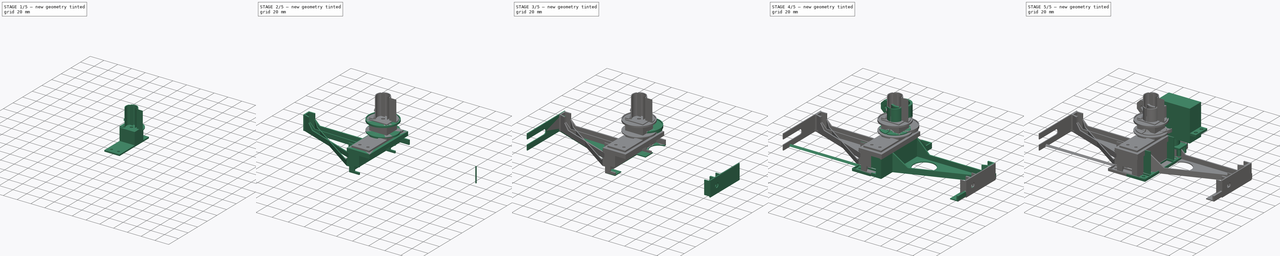
[diagram: build sequence overview — one tinted view per stage of 5, left to right]
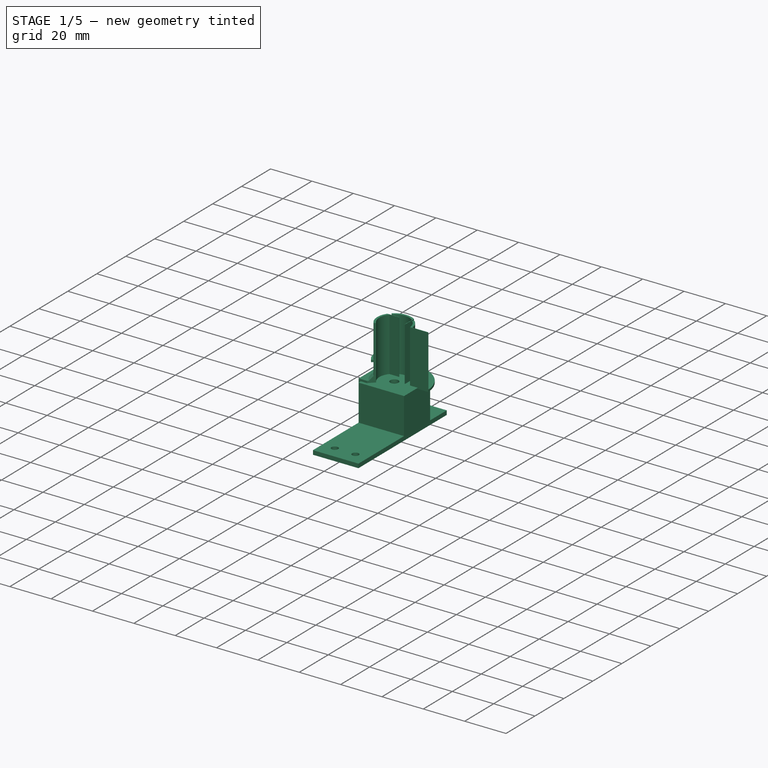
[diagram: stage 1 of 5 — iso view after this stage's code; geometry added in this stage tinted green]
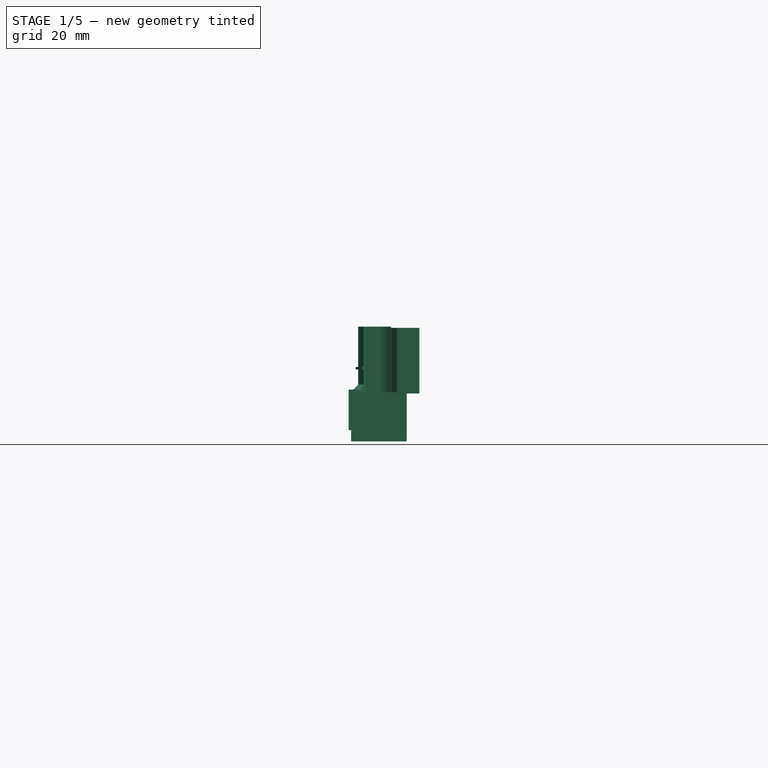
[diagram: stage 1 of 5 — front view after this stage's code; geometry added in this stage tinted green]
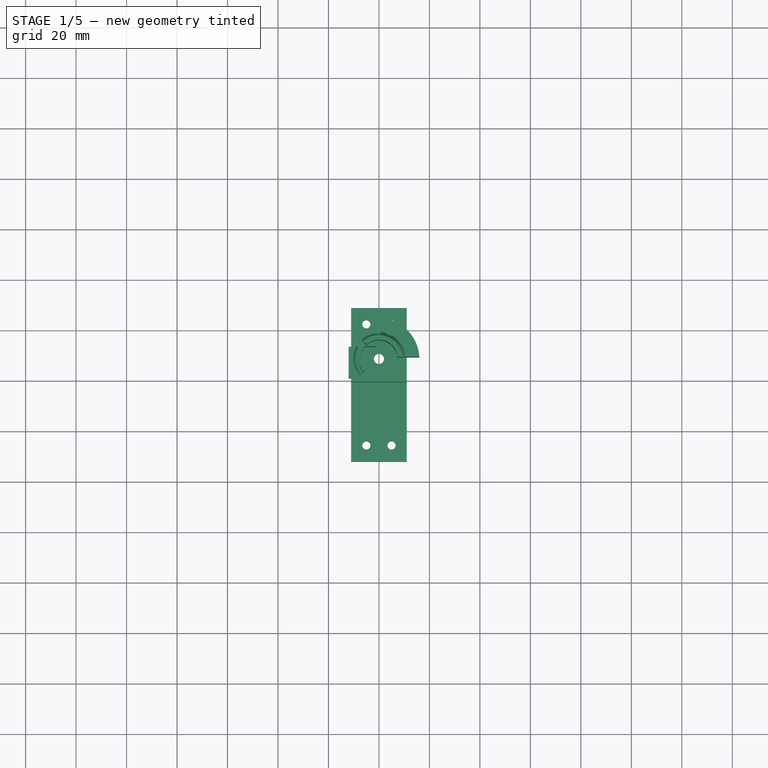
[diagram: stage 1 of 5 — top view after this stage's code; geometry added in this stage tinted green]
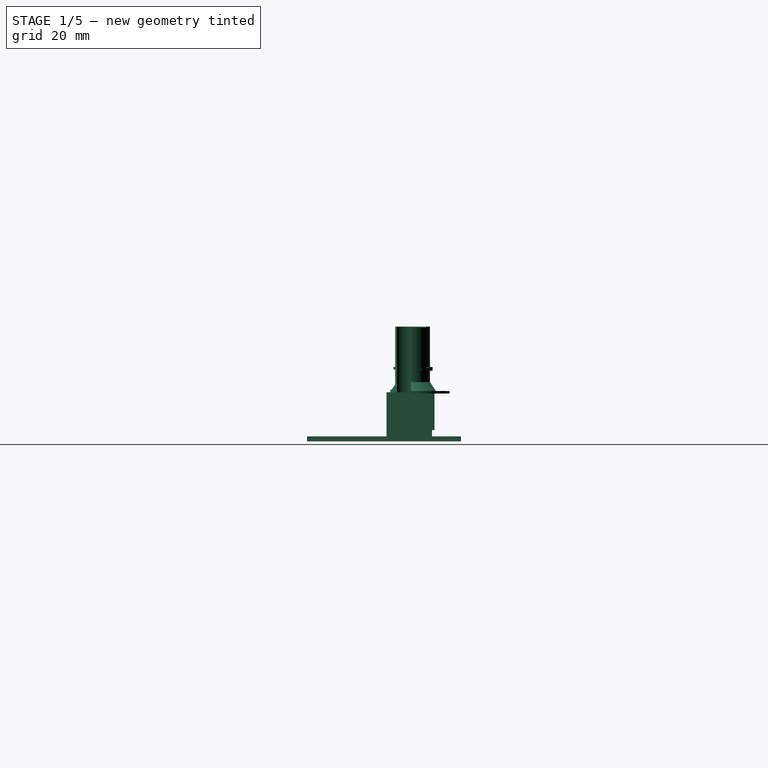
[diagram: stage 1 of 5 — right view after this stage's code; geometry added in this stage tinted green]
FCSTD DOCUMENT  (FreeCAD 0.19R24291 (Git))
Label: cam_motor4
License: All rights reserved
LicenseURL: http://en.wikipedia.org/wiki/All_rights_reserved
objects: Sketcher::SketchObject×56, Part::Extrusion×48, PartDesign::FeatureBase×22, PartDesign::Body×22, Part::Compound×16, Part::Mirroring×12, Part::Cut×10, Part::Cylinder×8, Part::MultiFuse×8, Part::FeaturePython×6, Part::Revolution×5, Part::Box×4, Part::MultiCommon×4, Spreadsheet::Sheet×1, Part::Sweep×1
note: 217 computed .brp shape members not serialized (recipe doc carries the construction recipe); baked Part::Feature solids carry a one-line shape summary decoded from their .brp

FEATURE [Sketcher::SketchObject] Sketch010  label="cf vertical"
  FullyConstrained = true
  Placement = pos=(0,0,10) rot=(0,0,1;0rad)
  expr: Constraints[9] = Spreadsheet.cf_radius + 1
  expr: Constraints[8] = Spreadsheet.cf_radius
  sketch-geometry (4):
    g0: ArcOfCircle CenterX=0 CenterY=0 CenterZ=0 NormalX=0 NormalY=0 NormalZ=1 AngleXU=0 Radius=7.25 StartAngle=0 EndAngle=1.5708
    g1: ArcOfCircle CenterX=0 CenterY=0 CenterZ=0 NormalX=0 NormalY=0 NormalZ=1 AngleXU=0 Radius=8.25 StartAngle=0 EndAngle=1.5708
    g2: LineSegment StartX=5e-16 StartY=8.25 StartZ=0 EndX=5e-16 EndY=7.25 EndZ=0
    g3: LineSegment StartX=7.25 StartY=0 StartZ=0 EndX=8.25 EndY=0 EndZ=0
  constraints (12):
    c: Coincident(g0,g-1)
    c: Coincident(g1,g0)
    c: Coincident(g2,g1)
    c: Coincident(g2,g0)
    c: Vertical(g2)
    c: Coincident(g3,g0)
    c: Coincident(g3,g1)
    c: Horizontal(g3)
    c: Radius(g0) = 7.25
    c: Radius(g1) = 8.25
    c: PointOnObject(g0,g-2)
    c: PointOnObject(g0,g-1)
FEATURE [Sketcher::SketchObject] Sketch011  label="cf horiz"
  FullyConstrained = true
  Placement = pos=(0,0,10) rot=(0,0,1;0rad)
  expr: Constraints[9] = Spreadsheet.servo_r
  expr: Constraints[8] = Spreadsheet.cf_radius
  sketch-geometry (4):
    g0: ArcOfCircle CenterX=0 CenterY=0 CenterZ=0 NormalX=0 NormalY=0 NormalZ=1 AngleXU=0 Radius=7.25 StartAngle=0 EndAngle=1.5708
    g1: ArcOfCircle CenterX=0 CenterY=0 CenterZ=0 NormalX=0 NormalY=0 NormalZ=1 AngleXU=0 Radius=16 StartAngle=0 EndAngle=1.5708
    g2: LineSegment StartX=4e-16 StartY=16 StartZ=0 EndX=4e-16 EndY=7.25 EndZ=0
    g3: LineSegment StartX=7.25 StartY=0 StartZ=0 EndX=16 EndY=0 EndZ=0
  constraints (12):
    c: Coincident(g0,g-1)
    c: Coincident(g1,g0)
    c: Coincident(g2,g1)
    c: Coincident(g2,g0)
    c: Vertical(g2)
    c: Coincident(g3,g0)
    c: Coincident(g3,g1)
    c: Horizontal(g3)
    c: Radius(g0) = 7.25
    c: Radius(g1) = 16
    c: PointOnObject(g0,g-2)
    c: PointOnObject(g0,g-1)
FEATURE [Sketcher::SketchObject] Sketch012  label="cf fillet profile"
  FullyConstrained = true
  Placement = pos=(0,0,0) rot=(1,0,0;1.5708rad)
  expr: Constraints[7] = Spreadsheet.cf_radius
  sketch-geometry (3):
    g0: LineSegment StartX=7.25 StartY=10 StartZ=0 EndX=7.25 EndY=16 EndZ=0
    g1: LineSegment StartX=7.25 StartY=16 StartZ=0 EndX=11.25 EndY=10 EndZ=0
    g2: LineSegment StartX=11.25 StartY=10 StartZ=0 EndX=7.25 EndY=10 EndZ=0
  constraints (9):
    c: Vertical(g0)
    c: Coincident(g0,g1)
    c: Coincident(g1,g2)
    c: Coincident(g2,g0)
    c: Horizontal(g2)
    c: DistanceX(g0,g1) = 4
    c: DistanceY(g0,g1) = -6
    c: DistanceX(g-1,g0) = 7.25
    c: DistanceY(g-1,g0) = 10
FEATURE [Part::Extrusion] Extrude008
  Base = -> Sketch010
  Dir = (0,0,1)
  DirMode = 2
  FaceMakerClass = Part::FaceMakerBullseye
  LengthFwd = 26
  LengthRev = 0
  Solid = true
  Symmetric = false
FEATURE [Part::Extrusion] Extrude009
  Base = -> Sketch011
  Dir = (0,0,1)
  DirMode = 2
  FaceMakerClass = Part::FaceMakerBullseye
  LengthFwd = 1
  LengthRev = 0
  Solid = true
  Symmetric = false
FEATURE [Sketcher::SketchObject] Sketch013
  FullyConstrained = true
  Placement = pos=(0,0,10) rot=(0,0,1;0rad)
  expr: Constraints[9] = Spreadsheet.cf_radius + 2
  expr: Constraints[8] = Spreadsheet.cf_radius
  sketch-geometry (4):
    g0: ArcOfCircle CenterX=0 CenterY=0 CenterZ=0 NormalX=0 NormalY=0 NormalZ=1 AngleXU=0 Radius=7.25 StartAngle=0 EndAngle=1.5708
    g1: ArcOfCircle CenterX=0 CenterY=0 CenterZ=0 NormalX=0 NormalY=0 NormalZ=1 AngleXU=0 Radius=9.25 StartAngle=0 EndAngle=1.5708
    g2: LineSegment StartX=4e-16 StartY=9.25 StartZ=0 EndX=4e-16 EndY=7.25 EndZ=0
    g3: LineSegment StartX=9.25 StartY=0 StartZ=0 EndX=7.25 EndY=0 EndZ=0
  constraints (12):
    c: Coincident(g0,g-1)
    c: Coincident(g1,g0)
    c: Coincident(g2,g1)
    c: Coincident(g2,g0)
    c: Coincident(g3,g1)
    c: Coincident(g3,g0)
    c: Horizontal(g3)
    c: Vertical(g2)
    c: Radius(g0) = 7.25
    c: Radius(g1) = 9.25
    c: PointOnObject(g0,g-2)
    c: PointOnObject(g0,g-1)
FEATURE [Part::Extrusion] Extrude011
  Base = -> Sketch013
  Dir = (0,0,1)
  DirMode = 2
  FaceMakerClass = Part::FaceMakerBullseye
  LengthFwd = 1
  LengthRev = 0
  Placement = pos=(0,0,9) rot=(0,0,1;0rad)
  Solid = true
  Symmetric = false
FEATURE [Sketcher::SketchObject] Sketch014  label="cf fillet path"
  FullyConstrained = true
  expr: Constraints[1] = Spreadsheet.cf_radius
  sketch-geometry (1):
    g0: ArcOfCircle CenterX=0 CenterY=0 CenterZ=0 NormalX=0 NormalY=0 NormalZ=1 AngleXU=0 Radius=7.25 StartAngle=0 EndAngle=1.5708
  constraints (4):
    c: Coincident(g0,g-1)
    c: Radius(g0) = 7.25
    c: PointOnObject(g0,g-2)
    c: PointOnObject(g0,g-1)
FEATURE [Part::Sweep] Sweep
  Frenet = false
  Sections = -> [Sketch012]
  Solid = true
  Spine = -> Sketch014
  Transition = 1
FEATURE [Part::Box] Box003  label="cf mask"
  AttacherType = Attacher::AttachEngine3D
  Height = 26
  Length = 18
  Placement = pos=(0.5,0.5,10) rot=(0,0,1;0rad)
  Width = 17
FEATURE [Part::MultiFuse] Fusion014
  Shapes = -> [Sweep,Extrude008,Extrude009,Extrude011]
FEATURE [Part::MultiCommon] Common  label="cf clamp001"
  Placement = pos=(0,-11.5,0) rot=(0,0,1;0rad)
  Shapes = -> [Box003,Fusion014]
FEATURE [Sketcher::SketchObject] Sketch052
  FullyConstrained = true
  Placement = pos=(0,0,0) rot=(0.57735,-0.57735,-0.57735;2.0944rad)
  sketch-geometry (12):
    g0: LineSegment StartX=-9 StartY=2 StartZ=0 EndX=-9 EndY=4 EndZ=0
    g1: LineSegment StartX=-9 StartY=4 StartZ=0 EndX=2.5 EndY=4 EndZ=0
    g2: LineSegment StartX=2.5 StartY=4 StartZ=0 EndX=2.5 EndY=21.5 EndZ=0
    g3: LineSegment StartX=2.5 StartY=21.5 StartZ=0 EndX=20.5 EndY=21.5 EndZ=0
    g4: LineSegment StartX=20.5 StartY=21.5 StartZ=0 EndX=20.5 EndY=4 EndZ=0
    g5: LineSegment StartX=20.5 StartY=4 StartZ=0 EndX=52 EndY=4 EndZ=0
    g6: LineSegment StartX=52 StartY=4 StartZ=0 EndX=52 EndY=2 EndZ=0
    g7: LineSegment StartX=4 StartY=20 StartZ=0 EndX=19 EndY=20 EndZ=0
    g8: LineSegment StartX=19 StartY=20 StartZ=0 EndX=19 EndY=2 EndZ=0
    g9: LineSegment StartX=4 StartY=2 StartZ=0 EndX=4 EndY=20 EndZ=0
    g10: LineSegment StartX=4 StartY=2 StartZ=0 EndX=-9 EndY=2 EndZ=0
    g11: LineSegment StartX=19 StartY=2 StartZ=0 EndX=52 EndY=2 EndZ=0
  constraints (36):
    c: Vertical(g0)
    c: Coincident(g0,g1)
    c: Horizontal(g1)
    c: Coincident(g1,g2)
    c: Vertical(g2)
    c: Coincident(g2,g3)
    c: Horizontal(g3)
    c: Coincident(g3,g4)
    c: Vertical(g4)
    c: Coincident(g4,g5)
    c: Horizontal(g5)
    c: Coincident(g5,g6)
    c: Vertical(g6)
    c: DistanceY(g2,g2) = 17.5
    c: DistanceY(g0,g0) = 2
    c: DistanceX(g1) = 2.5
    c: DistanceX(g4) = 20.5
    c: Coincident(g7,g8)
    c: Coincident(g9,g7)
    c: Horizontal(g7)
    c: Vertical(g8)
    c: Vertical(g9)
    c: DistanceX(g2,g7) = 1.5
    c: DistanceY(g7,g2) = 1.5
    c: DistanceX(g7,g3) = 1.5
    c: DistanceX(g0) = -9
    c: DistanceY(g0) = 2
    c: DistanceX(g5) = 52
    c: Coincident(g10,g9)
    c: Coincident(g10,g0)
    c: Horizontal(g10)
    c: Coincident(g11,g8)
    c: Coincident(g11,g6)
    c: Horizontal(g11)
    c: Horizontal(g4,g1)
    c: Horizontal(g8,g9)
FEATURE [Part::Extrusion] Extrude044
  Base = -> Sketch052
  Dir = (-1,0,0)
  DirMode = 2
  FaceMakerClass = Part::FaceMakerBullseye
  LengthFwd = 11
  LengthRev = 11
  Solid = true
  Symmetric = false
FEATURE [Sketcher::SketchObject] Sketch053
  FullyConstrained = true
  Placement = pos=(0,0,23) rot=(0,0,1;0rad)
  expr: Constraints[0] = Spreadsheet.lunchbox_screw_r2
  sketch-geometry (5):
    g0: Circle CenterX=-5 CenterY=2.5 CenterZ=0 NormalX=0 NormalY=0 NormalZ=1 AngleXU=0 Radius=1.6
    g1: Circle CenterX=5 CenterY=2.5 CenterZ=0 NormalX=0 NormalY=0 NormalZ=1 AngleXU=0 Radius=1.6
    g2: Circle CenterX=-5 CenterY=-45.5 CenterZ=0 NormalX=0 NormalY=0 NormalZ=1 AngleXU=0 Radius=1.6
    g3: Circle CenterX=5 CenterY=-45.5 CenterZ=0 NormalX=0 NormalY=0 NormalZ=1 AngleXU=0 Radius=1.6
    g4: Circle CenterX=0 CenterY=-11.5 CenterZ=0 NormalX=0 NormalY=0 NormalZ=1 AngleXU=0 Radius=2
  constraints (15):
    c: Radius(g0) = 1.6
    c: DistanceY(g0) = 2.5
    c: DistanceX(g0) = -5
    c: Equal(g0,g1) = 2
    c: Equal(g0,g2) = 2
    c: Equal(g0,g3) = 2
    c: Horizontal(g2,g3)
    c: Vertical(g2,g0)
    c: Vertical(g1,g3)
    c: DistanceY(g3) = -45.5
    c: DistanceX(g1) = 5
    c: Horizontal(g1,g0)
    c: PointOnObject(g4,g-2)
    c: Radius(g4) = 2
    c: DistanceY(g4) = -11.5
FEATURE [Part::Extrusion] Extrude045
  Base = -> Sketch053
  Dir = (0,0,1)
  DirMode = 2
  FaceMakerClass = Part::FaceMakerBullseye
  LengthFwd = 0
  LengthRev = 30
  Solid = true
  Symmetric = false
FEATURE [Part::Cut] Cut012  label="dummy servo"
  Base = -> Extrude044
  Tool = -> Extrude045
FEATURE [Sketcher::SketchObject] Sketch055
  FullyConstrained = false
  Placement = pos=(0,-11,0) rot=(1,0,0;1.5708rad)
  sketch-geometry (4):
    g0: LineSegment StartX=7.25 StartY=36 StartZ=0 EndX=16 EndY=36 EndZ=0
    g1: LineSegment StartX=16 StartY=36 StartZ=0 EndX=16 EndY=10 EndZ=0
    g2: LineSegment StartX=16 StartY=10 StartZ=0 EndX=7.25 EndY=10 EndZ=0
    g3: LineSegment StartX=7.25 StartY=10 StartZ=0 EndX=7.25 EndY=36 EndZ=0
  constraints (9):
    c: Coincident(g0,g1)
    c: Coincident(g1,g2)
    c: Coincident(g2,g3)
    c: Coincident(g3,g0)
    c: Horizontal(g0)
    c: Horizontal(g2)
    c: Vertical(g1)
    c: Vertical(g3)
    c: DistanceX(g0) = 7.25
FEATURE [Part::Extrusion] Extrude046
  Base = -> Sketch055
  Dir = (0,-1,-2e-16)
  DirMode = 2
  FaceMakerClass = Part::FaceMakerBullseye
  LengthFwd = 0
  LengthRev = 0.2
  Solid = true
  Symmetric = false
FEATURE [Part::Compound] Compound013  label="cf clamp002"
  Links = -> [Common,Extrude046]
  Placement = pos=(0,0,11) rot=(0,0,1;0rad)
FEATURE [Sketcher::SketchObject] Sketch056
  FullyConstrained = true
  Placement = pos=(0,0,0) rot=(1,0,0;1.5708rad)
  sketch-geometry (11):
    g0: LineSegment StartX=7.25 StartY=47.5 StartZ=0 EndX=7.25 EndY=21.5 EndZ=0
    g1: LineSegment StartX=7.25 StartY=21.5 StartZ=0 EndX=16.25 EndY=21.5 EndZ=0
    g2: LineSegment StartX=16.25 StartY=21.5 StartZ=0 EndX=16.25 EndY=22.5 EndZ=0
    g3: LineSegment StartX=16.25 StartY=22.5 StartZ=0 EndX=10.25 EndY=22.5 EndZ=0
    g4: LineSegment StartX=10.25 StartY=22.5 StartZ=0 EndX=8.25 EndY=24.5 EndZ=0
    g5: LineSegment StartX=8.25 StartY=24.5 StartZ=0 EndX=8.25 EndY=30.5 EndZ=0
    g6: LineSegment StartX=8.25 StartY=30.5 StartZ=0 EndX=9.25 EndY=30.5 EndZ=0
    g7: LineSegment StartX=9.25 StartY=30.5 StartZ=0 EndX=9.25 EndY=31.5 EndZ=0
    g8: LineSegment StartX=9.25 StartY=31.5 StartZ=0 EndX=8.25 EndY=31.5 EndZ=0
    g9: LineSegment StartX=8.25 StartY=31.5 StartZ=0 EndX=8.25 EndY=47.5 EndZ=0
    g10: LineSegment StartX=8.25 StartY=47.5 StartZ=0 EndX=7.25 EndY=47.5 EndZ=0
  constraints (33):
    c: Vertical(g0)
    c: Horizontal(g1)
    c: Coincident(g1,g2)
    c: Vertical(g2)
    c: Coincident(g2,g3)
    c: Horizontal(g3)
    c: Coincident(g3,g4)
    c: Coincident(g4,g5)
    c: Vertical(g5)
    c: Coincident(g5,g6)
    c: Horizontal(g6)
    c: Coincident(g6,g7)
    c: Coincident(g7,g8)
    c: Horizontal(g8)
    c: Coincident(g8,g9)
    c: Vertical(g9)
    c: Coincident(g9,g10)
    c: Coincident(g10,g0)
    c: Horizontal(g10)
    c: DistanceX(g0) = 7.25
    c: DistanceX(g10,g10) = 1
    c: DistanceY(g0,g0) = 26
    c: Vertical(g7)
    c: Vertical(g8,g5)
    c: DistanceX(g8,g8) = 1
    c: DistanceY(g7,g7) = 1
    c: DistanceY(g2,g2) = 1
    c: DistanceX(g1,g1) = 9
    c: DistanceY(g0) = 21.5
    c: DistanceY(g9,g9) = 16
    c: Angle(g5,g4,g4) = 0.785398
    c: DistanceX(g4,g3) = 2
    c: Coincident(g1,g0)
FEATURE [Part::Revolution] Revolve004
  Angle = 360
  Axis = (0,0,1)
  Base = (0,0,0)
  FaceMakerClass = Part::FaceMakerBullseye
  Placement = pos=(0,-11.5,0) rot=(0,0,1;0rad)
  Solid = true
  Source = -> Sketch056
  Symmetric = false
FEATURE [Sketcher::SketchObject] Sketch057
  FullyConstrained = true
  Placement = pos=(0,0,21.5) rot=(0,0,1;0rad)
  sketch-geometry (4):
    g0: LineSegment StartX=-8 StartY=-2.5 StartZ=0 EndX=4.8 EndY=-2.5 EndZ=0
    g1: LineSegment StartX=4.8 StartY=-2.5 StartZ=0 EndX=4.8 EndY=-1.5 EndZ=0
    g2: LineSegment StartX=4.8 StartY=-1.5 StartZ=0 EndX=-8 EndY=-1.5 EndZ=0
    g3: LineSegment StartX=-8 StartY=-1.5 StartZ=0 EndX=-8 EndY=-2.5 EndZ=0
  constraints (12):
    c: Coincident(g0,g1)
    c: Coincident(g1,g2)
    c: Coincident(g2,g3)
    c: Coincident(g3,g0)
    c: Horizontal(g0)
    c: Horizontal(g2)
    c: Vertical(g1)
    c: Vertical(g3)
    c: DistanceX(g2) = -8
    c: DistanceY(g2) = -1.5
    c: DistanceY(g3,g3) = 1
    c: DistanceX(g1) = 4.8
FEATURE [Part::Extrusion] Extrude047
  Base = -> Sketch057
  Dir = (0,0,1)
  DirMode = 2
  FaceMakerClass = Part::FaceMakerBullseye
  LengthFwd = 0
  LengthRev = 15
  Solid = true
  Symmetric = false
FEATURE [PartDesign::FeatureBase] Clone019
  BaseFeature = -> Revolve004
  Placement = pos=(0,-11.5,0) rot=(0,0,1;0rad)
FEATURE [PartDesign::Body] Body019
  BaseFeature = -> Revolve004
  Group = -> [Clone019]
  Origin = -> Origin019
  Tip = -> Clone019
FEATURE [PartDesign::FeatureBase] Clone020
  BaseFeature = -> Revolve004
  Placement = pos=(0,-11.5,0) rot=(0,0,1;0rad)
FEATURE [PartDesign::Body] Body020
  BaseFeature = -> Revolve004
  Group = -> [Clone020]
  Origin = -> Origin020
  Tip = -> Clone020
FEATURE [Sketcher::SketchObject] Sketch060
  FullyConstrained = true
  Placement = pos=(0,0,21.5) rot=(0,0,1;0rad)
  sketch-geometry (4):
    g0: LineSegment StartX=-11 StartY=-6.7 StartZ=0 EndX=-12 EndY=-6.7 EndZ=0
    g1: LineSegment StartX=-12 StartY=-6.7 StartZ=0 EndX=-12 EndY=-19 EndZ=0
    g2: LineSegment StartX=-12 StartY=-19 StartZ=0 EndX=-11 EndY=-19 EndZ=0
    g3: LineSegment StartX=-11 StartY=-19 StartZ=0 EndX=-11 EndY=-6.7 EndZ=0
  constraints (12):
    c: Coincident(g0,g1)
    c: Coincident(g1,g2)
    c: Coincident(g2,g3)
    c: Coincident(g3,g0)
    c: Horizontal(g0)
    c: Horizontal(g2)
    c: Vertical(g1)
    c: Vertical(g3)
    c: DistanceY(g0) = -6.7
    c: DistanceX(g0,g0) = 1
    c: DistanceX(g0) = -11
    c: DistanceY(g1) = -19
FEATURE [Part::Extrusion] Extrude050
  Base = -> Sketch060
  Dir = (0,0,1)
  DirMode = 2
  FaceMakerClass = Part::FaceMakerBullseye
  LengthFwd = 0
  LengthRev = 15
  Solid = true
  Symmetric = false
FEATURE [Sketcher::SketchObject] Sketch061
  FullyConstrained = true
  Placement = pos=(0,0,21.5) rot=(0,0,1;0rad)
  sketch-geometry (8):
    g0: LineSegment StartX=-11 StartY=-2.5 StartZ=0 EndX=-9.5 EndY=-2.5 EndZ=0
    g1: LineSegment StartX=-9.5 StartY=-2.5 StartZ=0 EndX=-9.5 EndY=-20.5 EndZ=0
    g2: LineSegment StartX=-9.5 StartY=-20.5 StartZ=0 EndX=-11 EndY=-20.5 EndZ=0
    g3: LineSegment StartX=-11 StartY=-20.5 StartZ=0 EndX=-11 EndY=-2.5 EndZ=0
    g4: LineSegment StartX=11 StartY=-2.5 StartZ=0 EndX=9.5 EndY=-2.5 EndZ=0
    g5: LineSegment StartX=9.5 StartY=-2.5 StartZ=0 EndX=9.5 EndY=-20.5 EndZ=0
    g6: LineSegment StartX=9.5 StartY=-20.5 StartZ=0 EndX=11 EndY=-20.5 EndZ=0
    g7: LineSegment StartX=11 StartY=-20.5 StartZ=0 EndX=11 EndY=-2.5 EndZ=0
  constraints (24):
    c: Coincident(g0,g1)
    c: Coincident(g1,g2)
    c: Coincident(g2,g3)
    c: Coincident(g3,g0)
    c: Horizontal(g0)
    c: Horizontal(g2)
    c: Vertical(g1)
    c: Vertical(g3)
    c: Coincident(g4,g5)
    c: Coincident(g5,g6)
    c: Coincident(g6,g7)
    c: Coincident(g7,g4)
    c: Horizontal(g4)
    c: Horizontal(g6)
    c: Vertical(g5)
    c: Vertical(g7)
    c: DistanceX(g0,g0) = 1.5
    c: DistanceX(g4,g4) = 1.5
    c: DistanceX(g4) = 11
    c: DistanceX(g0) = -11
    c: DistanceY(g0) = -2.5
    c: Horizontal(g4,g0)
    c: DistanceY(g3,g3) = 18
    c: Horizontal(g1,g5)
FEATURE [Part::Extrusion] Extrude051
  Base = -> Sketch061
  Dir = (0,0,1)
  DirMode = 2
  FaceMakerClass = Part::FaceMakerBullseye
  LengthFwd = 0
  LengthRev = 19.5
  Solid = true
  Symmetric = false
FEATURE [Part::Compound] Compound016  label="dummy servo001"
  Links = -> [Extrude051,Cut012]
FEATURE [Sketcher::SketchObject] Sketch062
  FullyConstrained = true
  Placement = pos=(0,0,48) rot=(0,0,1;0rad)
  sketch-geometry (5):
    g0: LineSegment StartX=-8 StartY=-1.5 StartZ=0 EndX=4.8 EndY=-1.5 EndZ=0
    g1: LineSegment StartX=4.8 StartY=-1.5 StartZ=0 EndX=4.8 EndY=-11 EndZ=0
    g2: LineSegment StartX=4.8 StartY=-11 StartZ=0 EndX=0 EndY=-11 EndZ=0
    g3: LineSegment StartX=0 StartY=-11 StartZ=0 EndX=-8 EndY=-3 EndZ=0
    g4: LineSegment StartX=-8 StartY=-1.5 StartZ=0 EndX=-8 EndY=-3 EndZ=0
  constraints (15):
    c: Coincident(g0,g1)
    c: Coincident(g1,g2)
    c: Coincident(g2,g3)
    c: Horizontal(g0)
    c: Horizontal(g2)
    c: Vertical(g1)
    c: DistanceX(g0) = 4.8
    c: DistanceY(g0) = -1.5
    c: DistanceY(g1) = -11
    c: Coincident(g4,g0)
    c: Coincident(g4,g3)
    c: Vertical(g4)
    c: DistanceX(g0) = -8
    c: PointOnObject(g2,g-2)
    c: Angle(g3,g2,g2) = 0.785398
FEATURE [Sketcher::SketchObject] Sketch063
  FullyConstrained = true
  Placement = pos=(0,0,48) rot=(0,0,1;0rad)
  sketch-geometry (5):
    g0: LineSegment StartX=-12 StartY=-6.7 StartZ=0 EndX=0 EndY=-6.7 EndZ=0
    g1: LineSegment StartX=0 StartY=-6.7 StartZ=0 EndX=0 EndY=-11 EndZ=0
    g2: LineSegment StartX=0 StartY=-11 StartZ=0 EndX=-8 EndY=-19 EndZ=0
    g3: LineSegment StartX=-12 StartY=-19 StartZ=0 EndX=-12 EndY=-6.7 EndZ=0
    g4: LineSegment StartX=-12 StartY=-19 StartZ=0 EndX=-8 EndY=-19 EndZ=0
  constraints (15):
    c: Coincident(g0,g1)
    c: Coincident(g1,g2)
    c: Coincident(g3,g0)
    c: Horizontal(g0)
    c: Vertical(g1)
    c: Vertical(g3)
    c: PointOnObject(g1,g-2)
    c: DistanceY(g0) = -6.7
    c: DistanceX(g0) = -12
    c: Coincident(g4,g3)
    c: Coincident(g4,g2)
    c: Horizontal(g4)
    c: DistanceY(g1) = -11
    c: Angle(g2,g1,g1) = 0.785398
    c: DistanceY(g3) = -19
FEATURE [Part::Extrusion] Extrude052
  Base = -> Sketch062
  Dir = (0,0,1)
  DirMode = 2
  FaceMakerClass = Part::FaceMakerBullseye
  LengthFwd = 0
  LengthRev = 30
  Solid = true
  Symmetric = false
FEATURE [Part::Extrusion] Extrude053
  Base = -> Sketch063
  Dir = (0,0,1)
  DirMode = 2
  FaceMakerClass = Part::FaceMakerBullseye
  LengthFwd = 0
  LengthRev = 30
  Solid = true
  Symmetric = false
FEATURE [Part::MultiCommon] Common004
  Shapes = -> [Body020,Extrude053]
FEATURE [Part::MultiCommon] Common005
  Shapes = -> [Body019,Extrude052]
FEATURE [Sketcher::SketchObject] Sketch064
  FullyConstrained = true
  Placement = pos=(4.8,0,0) rot=(0.57735,0.57735,0.57735;2.0944rad)
  sketch-geometry (6):
    g0: LineSegment StartX=-5 StartY=47.5 StartZ=0 EndX=-5 EndY=22 EndZ=0
    g1: LineSegment StartX=-5 StartY=22 StartZ=0 EndX=-2 EndY=22 EndZ=0
    g2: LineSegment StartX=-2 StartY=22 StartZ=0 EndX=-2 EndY=6.5 EndZ=0
    g3: LineSegment StartX=-2 StartY=6.5 StartZ=0 EndX=-11 EndY=6.5 EndZ=0
    g4: LineSegment StartX=-11 StartY=6.5 StartZ=0 EndX=-11 EndY=47.5 EndZ=0
    g5: LineSegment StartX=-11 StartY=47.5 StartZ=0 EndX=-5 EndY=47.5 EndZ=0
  constraints (18):
    c: Vertical(g0)
    c: Coincident(g0,g1)
    c: Horizontal(g1)
    c: Coincident(g1,g2)
    c: Vertical(g2)
    c: Coincident(g2,g3)
    c: Horizontal(g3)
    c: Coincident(g3,g4)
    c: Vertical(g4)
    c: Coincident(g4,g5)
    c: Coincident(g5,g0)
    c: Horizontal(g5)
    c: DistanceY(g2) = 6.5
    c: DistanceX(g1,g1) = 3
    c: DistanceY(g2,g2) = 15.5
    c: DistanceY(g0,g0) = 25.5
    c: DistanceX(g5,g5) = 6
    c: DistanceX(g2) = -2
FEATURE [Part::Extrusion] Extrude054
  Base = -> Sketch064
  Dir = (1,-2e-16,2e-16)
  DirMode = 2
  FaceMakerClass = Part::FaceMakerBullseye
  LengthFwd = 0
  LengthRev = 0.2
  Solid = true
  Symmetric = false
FEATURE [Part::Compound] Compound017  label="cf clamp003"
  Links = -> [Extrude047,Common005,Extrude054]
FEATURE [Sketcher::SketchObject] Sketch065
  FullyConstrained = true
  Placement = pos=(0,-6.7,0) rot=(0,0.707107,0.707107;3.14159rad)
  sketch-geometry (6):
    g0: LineSegment StartX=6 StartY=47.5 StartZ=0 EndX=6 EndY=22 EndZ=0
    g1: LineSegment StartX=6 StartY=22 StartZ=0 EndX=11.5 EndY=22 EndZ=0
    g2: LineSegment StartX=11.5 StartY=22 StartZ=0 EndX=11.5 EndY=6.5 EndZ=0
    g3: LineSegment StartX=11.5 StartY=6.5 StartZ=0 EndX=1 EndY=6.5 EndZ=0
    g4: LineSegment StartX=1 StartY=6.5 StartZ=0 EndX=1 EndY=47.5 EndZ=0
    g5: LineSegment StartX=1 StartY=47.5 StartZ=0 EndX=6 EndY=47.5 EndZ=0
  constraints (18):
    c: Vertical(g0)
    c: Coincident(g0,g1)
    c: Horizontal(g1)
    c: Coincident(g1,g2)
    c: Vertical(g2)
    c: Coincident(g2,g3)
    c: Horizontal(g3)
    c: Coincident(g3,g4)
    c: Vertical(g4)
    c: Coincident(g4,g5)
    c: Coincident(g5,g0)
    c: Horizontal(g5)
    c: DistanceY(g2) = 6.5
    c: DistanceY(g2,g2) = 15.5
    c: DistanceX(g1,g1) = 5.5
    c: DistanceY(g0,g0) = 25.5
    c: DistanceX(g5,g5) = 5
    c: DistanceX(g3) = 1
FEATURE [Part::Extrusion] Extrude055
  Base = -> Sketch065
  Dir = (1e-16,1,0)
  DirMode = 2
  FaceMakerClass = Part::FaceMakerBullseye
  LengthFwd = 0
  LengthRev = 0.2
  Solid = true
  Symmetric = false
FEATURE [Part::Compound] Compound018  label="cf clamp004"
  Links = -> [Extrude050,Common004,Extrude055]
FEATURE [PartDesign::FeatureBase] Clone021
  BaseFeature = -> Compound017
FEATURE [PartDesign::Body] Body021
  BaseFeature = -> Compound017
  Group = -> [Clone021]
  Origin = -> Origin021
  Placement = pos=(-3e-15,-23,0) rot=(0,0,1;3.14159rad)
  Tip = -> Clone021
FEATURE [PartDesign::FeatureBase] Clone022
  BaseFeature = -> Compound018
FEATURE [PartDesign::Body] Body022
  BaseFeature = -> Compound018
  Group = -> [Clone022]
  Origin = -> Origin022
  Placement = pos=(-3e-15,-23,0) rot=(0,0,1;3.14159rad)
  Tip = -> Clone022
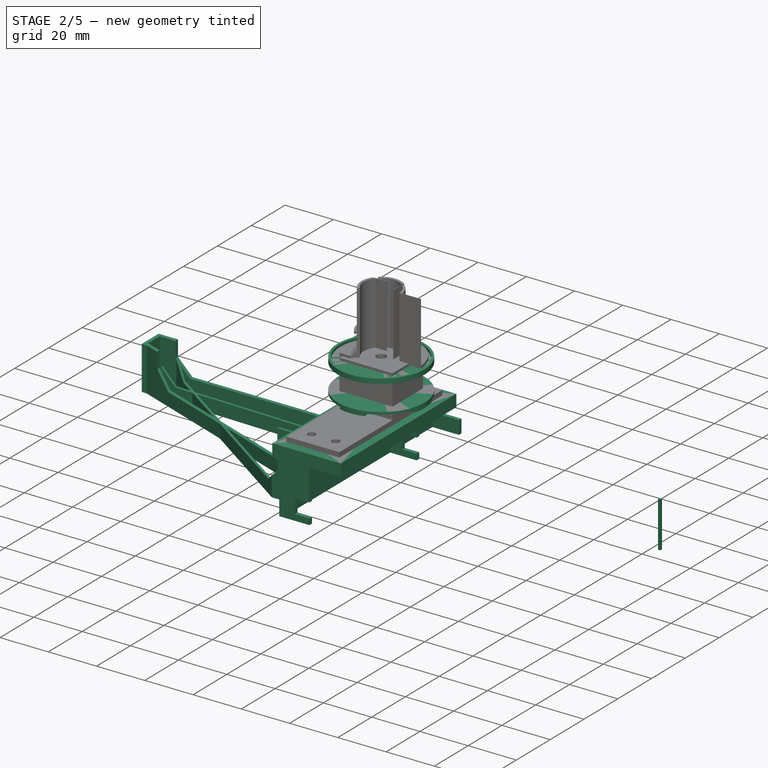
[diagram: stage 2 of 5 — iso view after this stage's code; geometry added in this stage tinted green]
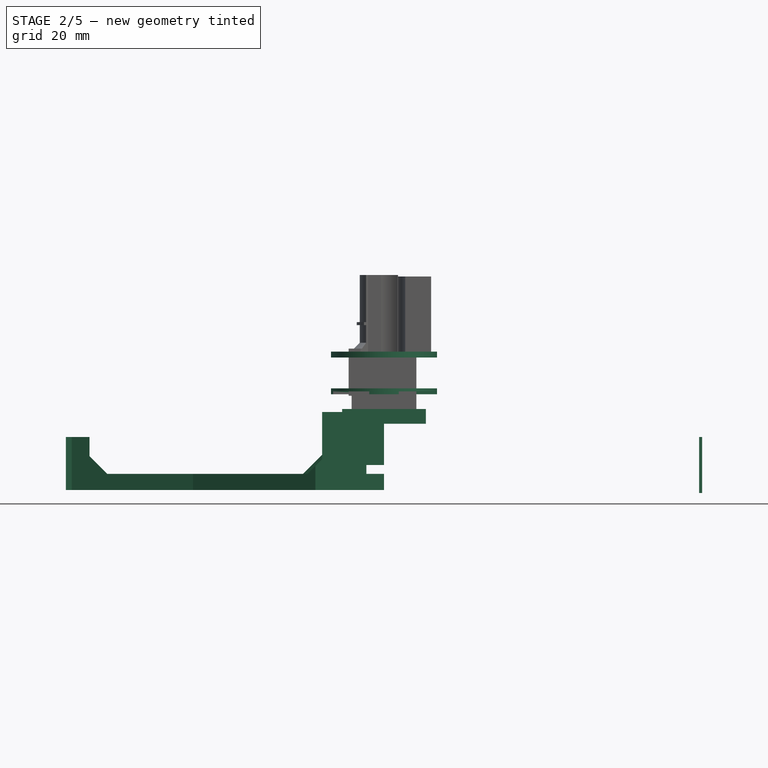
[diagram: stage 2 of 5 — front view after this stage's code; geometry added in this stage tinted green]
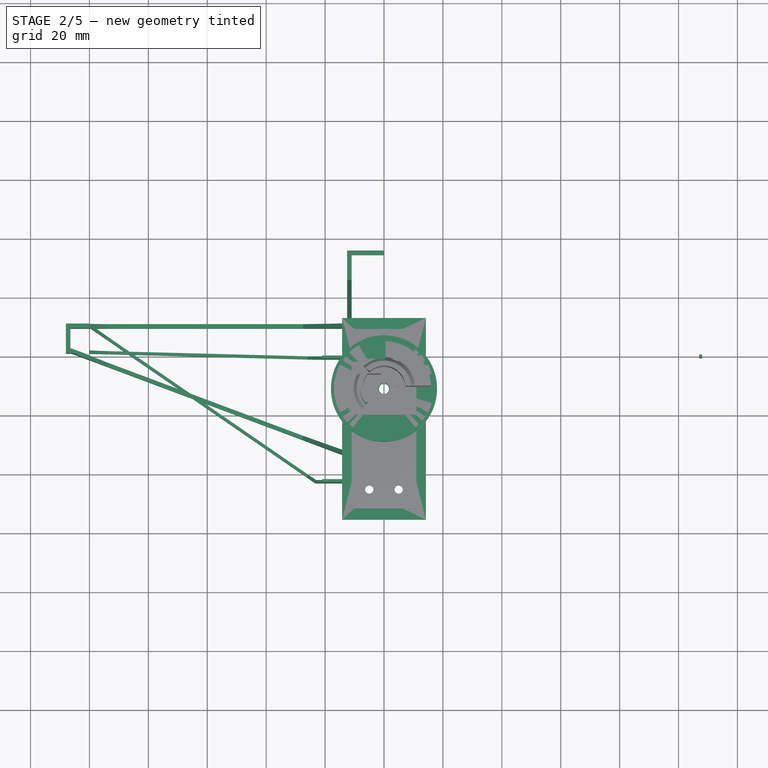
[diagram: stage 2 of 5 — top view after this stage's code; geometry added in this stage tinted green]
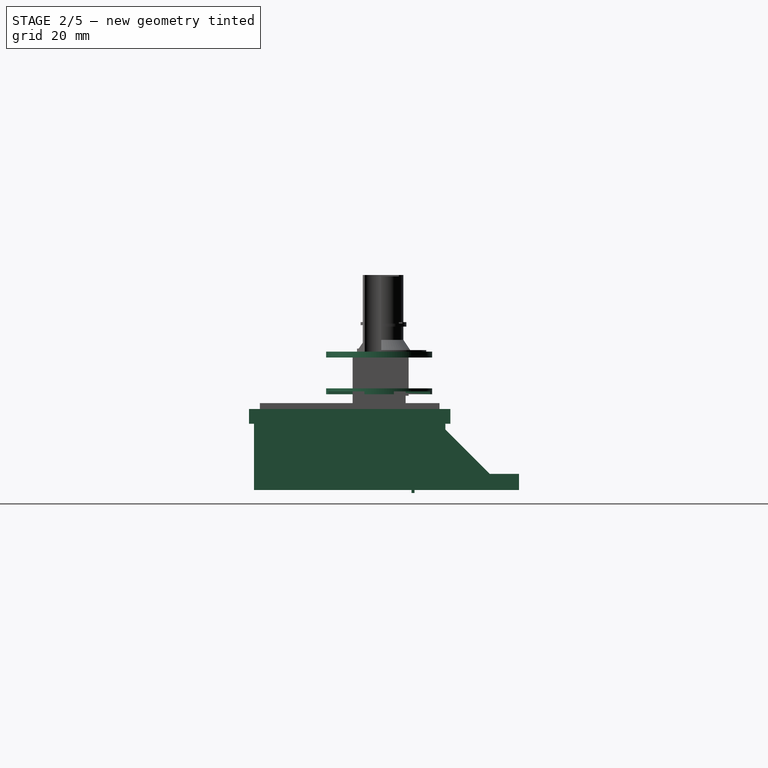
[diagram: stage 2 of 5 — right view after this stage's code; geometry added in this stage tinted green]
FEATURE [PartDesign::Body] Body  label="servo"
  BaseFeature = -> Fusion011
  Group = -> [Clone]
  Origin = -> Origin
  Placement = pos=(10,-1.5,13.5) rot=(0.707107,-0.707107,0;3.14159rad)
  Tip = -> Clone
FEATURE [Sketcher::SketchObject] Sketch
  FullyConstrained = true
  Placement = pos=(0,0,1) rot=(0,0,1;0rad)
  expr: Constraints[23] = Spreadsheet.lunchbox_screw_r1
  sketch-geometry (12):
    g0: LineSegment StartX=-11 StartY=0 StartZ=0 EndX=11 EndY=0 EndZ=0
    g1: LineSegment StartX=-11 StartY=0 StartZ=0 EndX=-11 EndY=-43 EndZ=0
    g2: LineSegment StartX=-14.2 StartY=12.7 StartZ=0 EndX=14.2 EndY=12.7 EndZ=0
    g3: LineSegment StartX=-14.2 StartY=-55.7 StartZ=0 EndX=-14.2 EndY=12.7 EndZ=0
    g4: LineSegment StartX=11 StartY=0 StartZ=0 EndX=11 EndY=-43 EndZ=0
    g5: LineSegment StartX=11 StartY=-43 StartZ=0 EndX=-11 EndY=-43 EndZ=0
    g6: LineSegment StartX=-14.2 StartY=-55.7 StartZ=0 EndX=14.2 EndY=-55.7 EndZ=0
    g7: LineSegment StartX=14.2 StartY=-55.7 StartZ=0 EndX=14.2 EndY=12.7 EndZ=0
    g8: Circle CenterX=-5 CenterY=2.5 CenterZ=0 NormalX=0 NormalY=0 NormalZ=1 AngleXU=0 Radius=1.4
    g9: Circle CenterX=5 CenterY=2.5 CenterZ=0 NormalX=0 NormalY=0 NormalZ=1 AngleXU=0 Radius=1.4
    g10: Circle CenterX=-5 CenterY=-45.5 CenterZ=0 NormalX=0 NormalY=0 NormalZ=1 AngleXU=0 Radius=1.4
    g11: Circle CenterX=5 CenterY=-45.5 CenterZ=0 NormalX=0 NormalY=0 NormalZ=1 AngleXU=0 Radius=1.4
  constraints (36):
    c: Horizontal(g0)
    c: Coincident(g1,g0)
    c: Vertical(g1)
    c: DistanceX(g0,g-1) = 11
    c: Coincident(g3,g2)
    c: Horizontal(g2)
    c: Vertical(g3)
    c: DistanceY(g2) = 12.7
    c: DistanceX(g2) = -14.2
    c: DistanceY(g1) = -43
    c: DistanceX(g0) = 11
    c: Coincident(g0,g4)
    c: Vertical(g4)
    c: Coincident(g4,g5)
    c: Coincident(g5,g1)
    c: Horizontal(g5)
    c: Coincident(g3,g6)
    c: Horizontal(g6)
    c: Coincident(g6,g7)
    c: Vertical(g7)
    c: Coincident(g2,g7)
    c: DistanceX(g2) = 14.2
    c: DistanceY(g6) = -55.7
    c: Radius(g8) = 1.4
    c: DistanceX(g8) = -5
    c: DistanceY(g8) = 2.5
    c: Equal(g8,g9) = 1.4
    c: DistanceX(g9) = 5
    c: Horizontal(g9,g8)
    c: Equal(g8,g10) = 1.4
    c: Equal(g8,g11) = 1.4
    c: Horizontal(g11,g10)
    c: Vertical(g10,g8)
    c: Vertical(g9,g11)
    c: DistanceY(g10) = -45.5
    c: PointOnObject(g0,g-1)
FEATURE [Part::Extrusion] Extrude
  Base = -> Sketch
  Dir = (0,0,1)
  DirMode = 2
  FaceMakerClass = Part::FaceMakerBullseye
  LengthFwd = 1
  LengthRev = 0
  Solid = true
  Symmetric = false
FEATURE [Sketcher::SketchObject] Sketch001
  FullyConstrained = true
  Placement = pos=(0,0,1) rot=(0,0,1;0rad)
  sketch-geometry (8):
    g0: LineSegment StartX=-14.2 StartY=12.7 StartZ=0 EndX=14.2 EndY=12.7 EndZ=0
    g1: LineSegment StartX=-14.2 StartY=-55.7 StartZ=0 EndX=-14.2 EndY=12.7 EndZ=0
    g2: LineSegment StartX=-12.7 StartY=-54.2 StartZ=0 EndX=-12.7 EndY=11.2 EndZ=0
    g3: LineSegment StartX=-12.7 StartY=11.2 StartZ=0 EndX=12.7 EndY=11.2 EndZ=0
    g4: LineSegment StartX=12.7 StartY=11.2 StartZ=0 EndX=12.7 EndY=-54.2 EndZ=0
    g5: LineSegment StartX=12.7 StartY=-54.2 StartZ=0 EndX=-12.7 EndY=-54.2 EndZ=0
    g6: LineSegment StartX=-14.2 StartY=-55.7 StartZ=0 EndX=14.2 EndY=-55.7 EndZ=0
    g7: LineSegment StartX=14.2 StartY=-55.7 StartZ=0 EndX=14.2 EndY=12.7 EndZ=0
  constraints (24):
    c: Coincident(g1,g0)
    c: Horizontal(g0)
    c: Vertical(g1)
    c: Vertical(g2)
    c: Coincident(g3,g2)
    c: Horizontal(g3)
    c: DistanceY(g3,g0) = 1.5
    c: DistanceX(g0,g2) = 1.5
    c: DistanceX(g2) = -12.7
    c: DistanceY(g2) = 11.2
    c: DistanceX(g3) = 12.7
    c: DistanceX(g3,g0) = 1.5
    c: Coincident(g3,g4)
    c: Vertical(g4)
    c: Coincident(g4,g5)
    c: Coincident(g5,g2)
    c: Horizontal(g5)
    c: Coincident(g1,g6)
    c: Horizontal(g6)
    c: Coincident(g6,g7)
    c: Coincident(g7,g0)
    c: Vertical(g7)
    c: DistanceY(g6,g4) = 1.5
    c: DistanceY(g2) = -54.2
FEATURE [Part::Extrusion] Extrude001
  Base = -> Sketch001
  Dir = (0,0,1)
  DirMode = 2
  FaceMakerClass = Part::FaceMakerBullseye
  LengthFwd = 0
  LengthRev = 4
  Solid = true
  Symmetric = false
FEATURE [Spreadsheet::Sheet] Spreadsheet
  cells = A1=lunchbox screw r1; B1(lunchbox_screw_r1)=1.4; A2=4_40_r; B2(r_4_40)=1.8; A3=cf radius; B3(cf_radius)=7.25; A4=servo r; B4(servo_r)=16; A5=r_6_32; B5(r_6_32)=1.85; A6=r3_4_40; B6(r3_4_40)=3.8; A8=m3_r1; B8(m3_r1)=1.7; A9=lunchbox screw r2 vertical; B9(lunchbox_screw_r2)=1.6
FEATURE [Sketcher::SketchObject] Sketch002
  FullyConstrained = true
  Placement = pos=(0,0,1) rot=(0,0,1;0rad)
  expr: Constraints[4] = Spreadsheet.lunchbox_screw_r1 + 2
  expr: Constraints[0] = Spreadsheet.lunchbox_screw_r1
  sketch-geometry (3):
    g0: Circle CenterX=-5 CenterY=2.5 CenterZ=0 NormalX=0 NormalY=0 NormalZ=1 AngleXU=0 Radius=1.4
    g1: ArcOfCircle CenterX=-5 CenterY=2.5 CenterZ=0 NormalX=0 NormalY=0 NormalZ=1 AngleXU=0 Radius=3.4 StartAngle=5.45708 EndAngle=10.2509
    g2: LineSegment StartX=-7.30434 StartY=7.28e-14 StartZ=0 EndX=-2.69566 EndY=7.28e-14 EndZ=0
  constraints (9):
    c: Radius(g0) = 1.4
    c: DistanceX(g0) = -5
    c: DistanceY(g0) = 2.5
    c: PointOnObject(g1,g-1)
    c: Radius(g1) = 3.4
    c: Coincident(g1,g0)
    c: Coincident(g2,g1)
    c: Coincident(g2,g1)
    c: Horizontal(g2)
FEATURE [Part::Extrusion] Extrude002  label="screw hole"
  Base = -> Sketch002
  Dir = (0,0,1)
  DirMode = 2
  FaceMakerClass = Part::FaceMakerBullseye
  LengthFwd = 0
  LengthRev = 3
  Solid = true
  Symmetric = false
FEATURE [Sketcher::SketchObject] Sketch020
  FullyConstrained = true
  Placement = pos=(0,0,-25.5) rot=(0,0,1;0rad)
  sketch-geometry (8):
    g0: LineSegment StartX=-11 StartY=0 StartZ=0 EndX=-11 EndY=-43 EndZ=0
    g1: LineSegment StartX=-11 StartY=-43 StartZ=0 EndX=-23.3109 EndY=-43 EndZ=0
    g2: LineSegment StartX=-12 StartY=0 StartZ=0 EndX=-12 EndY=-42 EndZ=0
    g3: LineSegment StartX=-12 StartY=-42 StartZ=0 EndX=-23 EndY=-42 EndZ=0
    g4: LineSegment StartX=-100 StartY=11 StartZ=0 EndX=-23 EndY=-42 EndZ=0
    g5: LineSegment StartX=-23.3109 StartY=-43 StartZ=0 EndX=-100.567 EndY=10.1763 EndZ=0
    g6: LineSegment StartX=-100 StartY=11 StartZ=0 EndX=-100.567 EndY=10.1763 EndZ=0
    g7: LineSegment StartX=-12 StartY=0 StartZ=0 EndX=-11 EndY=0 EndZ=0
  constraints (24):
    c: PointOnObject(g0,g-1)
    c: Vertical(g0)
    c: Coincident(g0,g1)
    c: Horizontal(g1)
    c: Vertical(g2)
    c: Coincident(g2,g3)
    c: Horizontal(g3)
    c: DistanceX(g0) = -11
    c: DistanceX(g2,g0) = 1
    c: DistanceY(g0,g2) = 1
    c: DistanceY(g0) = -43
    c: Coincident(g4,g3)
    c: Coincident(g5,g1)
    c: Distance(g4,g5) = 1
    c: DistanceX(g3) = -23
    c: Parallel(g5,g4)
    c: DistanceX(g4) = -100
    c: DistanceY(g4) = 11
    c: Coincident(g6,g4)
    c: Coincident(g6,g5)
    c: Angle(g5,g6,g5) = 1.5708
    c: Coincident(g7,g2)
    c: Coincident(g7,g0)
    c: Horizontal(g7)
FEATURE [Part::Extrusion] Extrude016
  Base = -> Sketch020
  Dir = (0,0,1)
  DirMode = 2
  FaceMakerClass = Part::FaceMakerBullseye
  LengthFwd = 26.5
  LengthRev = 0
  Solid = true
  Symmetric = false
FEATURE [Sketcher::SketchObject] Sketch022
  FullyConstrained = true
  Placement = pos=(0,-46,0) rot=(1,0,0;1.5708rad)
  sketch-geometry (6):
    g0: LineSegment StartX=-21 StartY=7.5 StartZ=0 EndX=-102 EndY=7.5 EndZ=0
    g1: LineSegment StartX=-102 StartY=7.5 StartZ=0 EndX=-102 EndY=-12 EndZ=0
    g2: LineSegment StartX=-94 StartY=-20 StartZ=0 EndX=-26 EndY=-20 EndZ=0
    g3: LineSegment StartX=-21 StartY=-15 StartZ=0 EndX=-21 EndY=7.5 EndZ=0
    g4: LineSegment StartX=-21 StartY=-15 StartZ=0 EndX=-26 EndY=-20 EndZ=0
    g5: LineSegment StartX=-102 StartY=-12 StartZ=0 EndX=-94 EndY=-20 EndZ=0
  constraints (18):
    c: Coincident(g0,g1)
    c: Coincident(g3,g0)
    c: Horizontal(g0)
    c: Horizontal(g2)
    c: Vertical(g1)
    c: Vertical(g3)
    c: DistanceX(g0) = -21
    c: Coincident(g4,g3)
    c: Coincident(g4,g2)
    c: DistanceX(g2,g3) = 5
    c: Coincident(g5,g1)
    c: Coincident(g5,g2)
    c: Angle(g5,g2,g2) = 0.785398
    c: DistanceY(g2,g3) = 5
    c: DistanceX(g0) = -102
    c: DistanceX(g1,g2) = 8
    c: DistanceY(g2) = -20
    c: DistanceY(g0) = 7.5
FEATURE [Part::Extrusion] Extrude018
  Base = -> Sketch022
  Dir = (0,-1,2e-16)
  DirMode = 2
  FaceMakerClass = Part::FaceMakerBullseye
  LengthFwd = 0
  LengthRev = 60
  Solid = true
  Symmetric = false
FEATURE [Sketcher::SketchObject] Sketch042
  FullyConstrained = true
  Placement = pos=(0,0,0) rot=(1,0,0;1.5708rad)
  expr: Constraints[8] = Spreadsheet.servo_r + 2
  expr: Constraints[18] = Spreadsheet.m3_r1
  sketch-geometry (8):
    g0: LineSegment StartX=18 StartY=8 StartZ=0 EndX=4.85 EndY=8 EndZ=0
    g1: LineSegment StartX=1.7 StartY=8 StartZ=0 EndX=1.7 EndY=9 EndZ=0
    g2: LineSegment StartX=1.7 StartY=9 StartZ=0 EndX=18 EndY=9 EndZ=0
    g3: LineSegment StartX=18 StartY=9 StartZ=0 EndX=18 EndY=8 EndZ=0
    g4: LineSegment StartX=1.7 StartY=8 StartZ=0 EndX=2.85 EndY=8 EndZ=0
    g5: LineSegment StartX=2.85 StartY=8 StartZ=0 EndX=2.85 EndY=4 EndZ=0
    g6: LineSegment StartX=2.85 StartY=4 StartZ=0 EndX=4.85 EndY=4 EndZ=0
    g7: LineSegment StartX=4.85 StartY=4 StartZ=0 EndX=4.85 EndY=8 EndZ=0
  constraints (24):
    c: Horizontal(g0)
    c: Vertical(g1)
    c: Coincident(g1,g2)
    c: Horizontal(g2)
    c: Coincident(g2,g3)
    c: Vertical(g3)
    c: DistanceY(g1) = 9
    c: Coincident(g0,g3)
    c: DistanceX(g2) = 18
    c: Coincident(g1,g4)
    c: Horizontal(g4)
    c: Coincident(g4,g5)
    c: Vertical(g5)
    c: Coincident(g5,g6)
    c: Horizontal(g6)
    c: Coincident(g6,g7)
    c: Coincident(g7,g0)
    c: Vertical(g7)
    c: DistanceX(g1) = 1.7
    c: DistanceX(g4) = 2.85
    c: DistanceX(g6,g6) = 2
    c: DistanceY(g1,g1) = 1
    c: Horizontal(g0,g4)
    c: DistanceY(g5,g5) = 4
FEATURE [Part::Revolution] Revolve002
  Angle = 360
  Axis = (0,0,1)
  Base = (0,0,0)
  FaceMakerClass = Part::FaceMakerBullseye
  Solid = true
  Source = -> Sketch042
  Symmetric = false
FEATURE [Sketcher::SketchObject] Sketch043
  FullyConstrained = true
  Placement = pos=(0,0,0) rot=(1,0,0;3.14159rad)
  expr: Constraints[0] = Spreadsheet.servo_r + 2
  sketch-geometry (6):
    g0: ArcOfCircle CenterX=0 CenterY=0 CenterZ=0 NormalX=0 NormalY=0 NormalZ=1 AngleXU=0 Radius=18 StartAngle=6.00171 EndAngle=6.56467
    g1: LineSegment StartX=17.2916 StartY=5 StartZ=0 EndX=0 EndY=5 EndZ=0
    g2: LineSegment StartX=-7e-16 StartY=-5 StartZ=0 EndX=17.2916 EndY=-5 EndZ=0
    g3: ArcOfCircle CenterX=0 CenterY=0 CenterZ=0 NormalX=0 NormalY=0 NormalZ=1 AngleXU=0 Radius=4 StartAngle=4.71239 EndAngle=7.85398
    g4: LineSegment StartX=1.2e-15 StartY=5 StartZ=0 EndX=1.2e-15 EndY=4 EndZ=0
    g5: LineSegment StartX=-7e-16 StartY=-4 StartZ=0 EndX=-7e-16 EndY=-5 EndZ=0
  constraints (18):
    c: Radius(g0) = 18
    c: DistanceY(g0) = 5
    c: DistanceY(g0) = -5
    c: Coincident(g1,g0)
    c: Horizontal(g1)
    c: Coincident(g2,g0)
    c: Horizontal(g2)
    c: Coincident(g0,g-1)
    c: PointOnObject(g2,g-2)
    c: Coincident(g3,g0)
    c: PointOnObject(g3,g-2)
    c: Coincident(g4,g1)
    c: Coincident(g4,g3)
    c: Vertical(g4)
    c: Coincident(g5,g3)
    c: Coincident(g5,g2)
    c: Vertical(g5)
    c: Radius(g3) = 4
FEATURE [Part::Extrusion] Extrude036
  Base = -> Sketch043
  Dir = (0,0,-1)
  DirMode = 2
  FaceMakerClass = Part::FaceMakerBullseye
  LengthFwd = 1
  LengthRev = 0
  Solid = true
  Symmetric = false
FEATURE [Part::FeaturePython] Array005  # Draft array (typed FeaturePython)
  Angle = 360
  ArrayType = 1
  Axis = (0,0,1)
  Base = -> Extrude036
  Center = (0,0,0)
  Count = 4
  ExpandArray = false
  Fuse = false
  IntervalAxis = (0,0,0)
  IntervalX = (100,0,0)
  IntervalY = (0,100,0)
  IntervalZ = (0,0,100)
  NumberCircles = 3
  NumberPolar = 4
  NumberX = 2
  NumberY = 2
  NumberZ = 1
  Placement = pos=(0,0,8) rot=(0,0,1;0rad)
  PlacementList = 4 placements: [(0,0,0),(0,0,0),(0,0,0),(0,0,0)]
  RadialDistance = 50
  ScaleList = (4) [(1,1,1),(1,1,1),(1,1,1),(1,1,1)]
  Symmetry = 1
  TangentialDistance = 25
FEATURE [Part::Compound] Compound011  label="TPU horn"
  Links = -> [Array005,Revolve002]
  Placement = pos=(0,-11.5,0) rot=(0,0,1;0rad)
FEATURE [Sketcher::SketchObject] Sketch044
  FullyConstrained = true
  Placement = pos=(0,0,-25.5) rot=(0,0,1;0rad)
  sketch-geometry (6):
    g0: LineSegment StartX=-11 StartY=-1 StartZ=0 EndX=-23.013 EndY=-1 EndZ=0
    g1: LineSegment StartX=-11 StartY=0 StartZ=0 EndX=-23 EndY=0 EndZ=0
    g2: LineSegment StartX=-100 StartY=2 StartZ=0 EndX=-23 EndY=0 EndZ=0
    g3: LineSegment StartX=-23.013 StartY=-1 StartZ=0 EndX=-100.026 EndY=1.00034 EndZ=0
    g4: LineSegment StartX=-100 StartY=2 StartZ=0 EndX=-100.026 EndY=1.00034 EndZ=0
    g5: LineSegment StartX=-11 StartY=0 StartZ=0 EndX=-11 EndY=-1 EndZ=0
  constraints (18):
    c: Horizontal(g0)
    c: Horizontal(g1)
    c: DistanceY(g0,g1) = 1
    c: Coincident(g2,g1)
    c: Coincident(g3,g0)
    c: Distance(g2,g3) = 1
    c: DistanceX(g1) = -23
    c: Parallel(g3,g2)
    c: Coincident(g4,g2)
    c: Coincident(g4,g3)
    c: Angle(g3,g4,g3) = 1.5708
    c: Coincident(g5,g1)
    c: Coincident(g5,g0)
    c: Vertical(g5)
    c: DistanceX(g0) = -11
    c: PointOnObject(g1,g-1)
    c: DistanceY(g2) = 2
    c: DistanceX(g2) = -100
FEATURE [Part::Extrusion] Extrude037
  Base = -> Sketch044
  Dir = (0,0,1)
  DirMode = 2
  FaceMakerClass = Part::FaceMakerBullseye
  LengthFwd = 26.5
  LengthRev = 0
  Solid = true
  Symmetric = false
FEATURE [PartDesign::FeatureBase] Clone013
  BaseFeature = -> Extrude018
FEATURE [PartDesign::Body] Body013
  BaseFeature = -> Extrude018
  Group = -> [Clone013]
  Origin = -> Origin013
  Tip = -> Clone013
FEATURE [PartDesign::FeatureBase] Clone014
  BaseFeature = -> Extrude018
FEATURE [PartDesign::Body] Body014
  BaseFeature = -> Extrude018
  Group = -> [Clone014]
  Origin = -> Origin014
  Tip = -> Clone014
FEATURE [Part::Cut] Cut007
  Base = -> Extrude037
  Tool = -> Body014
FEATURE [Part::Cut] Cut008
  Base = -> Extrude016
  Tool = -> Body013
FEATURE [Sketcher::SketchObject] Sketch045
  FullyConstrained = true
  Placement = pos=(0,0,-25.5) rot=(0,0,1;0rad)
  sketch-geometry (6):
    g0: LineSegment StartX=-11 StartY=-1 StartZ=0 EndX=-11 EndY=35 EndZ=0
    g1: LineSegment StartX=-11 StartY=35 StartZ=0 EndX=0 EndY=35 EndZ=0
    g2: LineSegment StartX=0 StartY=35 StartZ=0 EndX=0 EndY=36 EndZ=0
    g3: LineSegment StartX=0 StartY=36 StartZ=0 EndX=-12 EndY=36 EndZ=0
    g4: LineSegment StartX=-12 StartY=36 StartZ=0 EndX=-12 EndY=-1 EndZ=0
    g5: LineSegment StartX=-12 StartY=-1 StartZ=0 EndX=-11 EndY=-1 EndZ=0
  constraints (18):
    c: Vertical(g0)
    c: Coincident(g0,g1)
    c: PointOnObject(g1,g-2)
    c: Horizontal(g1)
    c: Coincident(g1,g2)
    c: PointOnObject(g2,g-2)
    c: Coincident(g2,g3)
    c: Horizontal(g3)
    c: Coincident(g3,g4)
    c: Vertical(g4)
    c: Coincident(g4,g5)
    c: Coincident(g5,g0)
    c: Horizontal(g5)
    c: DistanceY(g2,g2) = 1
    c: DistanceY(g3) = 36
    c: DistanceX(g5,g5) = 1
    c: DistanceX(g4) = -12
    c: DistanceY(g4) = -1
FEATURE [Part::Extrusion] Extrude038
  Base = -> Sketch045
  Dir = (0,0,1)
  DirMode = 2
  FaceMakerClass = Part::FaceMakerBullseye
  LengthFwd = 26.5
  LengthRev = 0
  Solid = true
  Symmetric = false
FEATURE [Sketcher::SketchObject] Sketch046
  FullyConstrained = false
  Placement = pos=(-14,0,0) rot=(0.57735,-0.57735,-0.57735;2.0944rad)
  sketch-geometry (5):
    g0: LineSegment StartX=0 StartY=4 StartZ=0 EndX=0 EndY=-12 EndZ=0
    g1: LineSegment StartX=0 StartY=-12 StartZ=0 EndX=-8 EndY=-20 EndZ=0
    g2: LineSegment StartX=-8 StartY=-20 StartZ=0 EndX=-41 EndY=-20 EndZ=0
    g3: LineSegment StartX=-41 StartY=-20 StartZ=0 EndX=-41 EndY=4 EndZ=0
    g4: LineSegment StartX=-41 StartY=4 StartZ=0 EndX=0 EndY=4 EndZ=0
  constraints (13):
    c: PointOnObject(g0,g-2)
    c: PointOnObject(g0,g-2)
    c: Coincident(g0,g1)
    c: Coincident(g1,g2)
    c: Horizontal(g2)
    c: Coincident(g2,g3)
    c: Vertical(g3)
    c: Coincident(g3,g4)
    c: Coincident(g4,g0)
    c: Horizontal(g4)
    c: DistanceX(g1,g0) = 8
    c: DistanceY(g1,g0) = 8
    c: DistanceY(g1) = -20
FEATURE [Part::Extrusion] Extrude039
  Base = -> Sketch046
  Dir = (-1,2e-16,-2e-16)
  DirMode = 2
  FaceMakerClass = Part::FaceMakerBullseye
  LengthFwd = 0
  LengthRev = 15
  Solid = true
  Symmetric = false
FEATURE [Part::Cut] Cut009
  Base = -> Extrude038
  Tool = -> Extrude039
FEATURE [Sketcher::SketchObject] Sketch047
  FullyConstrained = true
  Placement = pos=(0,0,-7.5) rot=(0,0,1;0rad)
  sketch-geometry (4):
    g0: LineSegment StartX=108 StartY=0.5 StartZ=0 EndX=107 EndY=0.5 EndZ=0
    g1: LineSegment StartX=107 StartY=0.5 StartZ=0 EndX=107 EndY=-0.51 EndZ=0
    g2: LineSegment StartX=107 StartY=-0.51 StartZ=0 EndX=108 EndY=-0.51 EndZ=0
    g3: LineSegment StartX=108 StartY=0.5 StartZ=0 EndX=108 EndY=-0.51 EndZ=0
  constraints (12):
    c: Horizontal(g0)
    c: Coincident(g0,g1)
    c: Vertical(g1)
    c: Coincident(g1,g2)
    c: Horizontal(g2)
    c: DistanceX(g0,g0) = 1
    c: DistanceY(g1,g1) = 1.01
    c: Coincident(g3,g0)
    c: Coincident(g3,g2)
    c: DistanceX(g0) = 108
    c: DistanceY(g0) = 0.5
    c: Vertical(g3)
FEATURE [Part::Extrusion] Extrude040  label="boolean error"
  Base = -> Sketch047
  Dir = (0,0,1)
  DirMode = 2
  FaceMakerClass = Part::FaceMakerBullseye
  LengthFwd = 0
  LengthRev = 19
  Solid = true
  Symmetric = false
FEATURE [Sketcher::SketchObject] Sketch048
  FullyConstrained = true
  Placement = pos=(0,0,-25.5) rot=(0,0,1;0rad)
  sketch-geometry (24):
    g0: LineSegment StartX=-108 StartY=11 StartZ=0 EndX=-108 EndY=1 EndZ=0
    g1: LineSegment StartX=-108 StartY=1 StartZ=0 EndX=-106 EndY=1 EndZ=0
    g2: LineSegment StartX=-106 StartY=1 StartZ=0 EndX=-12.5 EndY=-34 EndZ=0
    g3: LineSegment StartX=-12.5 StartY=-34 StartZ=0 EndX=-12.5 EndY=-54 EndZ=0
    g4: LineSegment StartX=-12.5 StartY=-54 StartZ=0 EndX=0 EndY=-54 EndZ=0
    g5: LineSegment StartX=-11 StartY=9.5 StartZ=0 EndX=0 EndY=9.5 EndZ=0
    g6: LineSegment StartX=-106 StartY=11 StartZ=0 EndX=-12.5 EndY=11 EndZ=0
    g7: LineSegment StartX=-12.5 StartY=36 StartZ=0 EndX=0 EndY=36 EndZ=0
    g8: LineSegment StartX=-12.5 StartY=36 StartZ=0 EndX=-12.5 EndY=11 EndZ=0
    g9: LineSegment StartX=-108 StartY=11 StartZ=0 EndX=-106 EndY=11 EndZ=0
    g10: LineSegment StartX=0 StartY=36 StartZ=0 EndX=0 EndY=34.5 EndZ=0
    g11: LineSegment StartX=0 StartY=34.5 StartZ=0 EndX=-11 EndY=34.5 EndZ=0
    g12: LineSegment StartX=-12.5 StartY=9.5 StartZ=0 EndX=-106 EndY=9.5 EndZ=0
    g13: LineSegment StartX=-106 StartY=9.5 StartZ=0 EndX=-106.5 EndY=9.5 EndZ=0
    g14: LineSegment StartX=-106.5 StartY=9.5 StartZ=0 EndX=-106.5 EndY=2.5 EndZ=0
    g15: LineSegment StartX=-106.5 StartY=2.5 StartZ=0 EndX=-106 EndY=2.5 EndZ=0
    g16: LineSegment StartX=-106 StartY=2.5 StartZ=0 EndX=-12.5 EndY=-32.5 EndZ=0
    g17: LineSegment StartX=0 StartY=-52.5 StartZ=0 EndX=0 EndY=-54 EndZ=0
    g18: LineSegment StartX=0 StartY=9.5 StartZ=0 EndX=0 EndY=11 EndZ=0
    g19: LineSegment StartX=0 StartY=11 StartZ=0 EndX=-11 EndY=11 EndZ=0
    g20: LineSegment StartX=0 StartY=-52.5 StartZ=0 EndX=-11 EndY=-52.5 EndZ=0
    g21: LineSegment StartX=-12.5 StartY=9.5 StartZ=0 EndX=-12.5 EndY=-32.5 EndZ=0
    g22: LineSegment StartX=-11 StartY=34.5 StartZ=0 EndX=-11 EndY=11 EndZ=0
    g23: LineSegment StartX=-11 StartY=9.5 StartZ=0 EndX=-11 EndY=-52.5 EndZ=0
  constraints (72):
    c: Vertical(g0)
    c: Coincident(g0,g1)
    c: Coincident(g1,g2)
    c: Coincident(g2,g3)
    c: Vertical(g3)
    c: Coincident(g3,g4)
    c: PointOnObject(g4,g-2)
    c: Horizontal(g4)
    c: PointOnObject(g20,g-2)
    c: Horizontal(g5)
    c: PointOnObject(g7,g-2)
    c: Horizontal(g7)
    c: Coincident(g8,g7)
    c: Coincident(g8,g6)
    c: Vertical(g8)
    c: Coincident(g9,g0)
    c: Coincident(g9,g6)
    c: Horizontal(g9)
    c: Coincident(g7,g10)
    c: Coincident(g10,g11)
    c: Horizontal(g11)
    c: Coincident(g12,g13)
    c: Horizontal(g13)
    c: Coincident(g13,g14)
    c: Coincident(g14,g15)
    c: Coincident(g15,g16)
    c: Coincident(g17,g4)
    c: Vertical(g10)
    c: Coincident(g5,g18)
    c: PointOnObject(g18,g-2)
    c: Vertical(g18)
    c: Coincident(g18,g19)
    c: Horizontal(g19)
    c: Horizontal(g20)
    c: Coincident(g21,g12)
    c: Coincident(g21,g16)
    c: Vertical(g21)
    c: Vertical(g12,g6)
    c: Vertical(g16,g2)
    c: Vertical(g14)
    c: Horizontal(g15)
    c: DistanceX(g0,g14) = 1.5
    c: DistanceY(g0,g14) = 1.5
    c: DistanceY(g13,g0) = 1.5
    c: DistanceX(g0) = -108
    c: DistanceY(g0) = 11
    c: DistanceY(g0,g0) = 10
    c: DistanceX(g9,g9) = 2
    c: Vertical(g6,g1)
    c: DistanceY(g11,g7) = 1.5
    c: DistanceX(g7,g11) = 1.5
    c: Coincident(g22,g11)
    c: Vertical(g22)
    c: Coincident(g23,g20)
    c: Vertical(g23)
    c: Coincident(g5,g23)
    c: Coincident(g19,g22)
    c: Vertical(g19,g5)
    c: DistanceY(g4,g20) = 1.5
    c: DistanceY(g18,g18) = 1.5
    c: DistanceY(g12,g6) = 1.5
    c: DistanceY(g2,g16) = 1.5
    c: Vertical(g15,g1)
    c: Vertical(g12,g6)
    c: DistanceY(g4) = -54
    c: DistanceX(g5) = -11
    c: DistanceY(g7) = 36
    c: Coincident(g17,g20)
    c: Horizontal(g6)
    c: DistanceY(g2) = -34
    c: Horizontal(g1)
    c: Horizontal(g19,g6)
FEATURE [Part::Extrusion] Extrude041
  Base = -> Sketch048
  Dir = (0,0,1)
  DirMode = 2
  FaceMakerClass = Part::FaceMakerBullseye
  LengthFwd = 26.5
  LengthRev = 0
  Solid = true
  Symmetric = false
FEATURE [Sketcher::SketchObject] Sketch049
  FullyConstrained = false
  Placement = pos=(0,-63,0) rot=(1,0,0;1.5708rad)
  sketch-geometry (12):
    g0: LineSegment StartX=-12.5 StartY=8 StartZ=0 EndX=-109 EndY=8 EndZ=0
    g1: LineSegment StartX=-100 StartY=-7.5 StartZ=0 EndX=-100 EndY=-14 EndZ=0
    g2: LineSegment StartX=-94 StartY=-20 StartZ=0 EndX=-27.5 EndY=-20 EndZ=0
    g3: LineSegment StartX=-12.5 StartY=-5 StartZ=0 EndX=-12.5 EndY=8 EndZ=0
    g4: LineSegment StartX=-12.5 StartY=-5 StartZ=0 EndX=-27.5 EndY=-20 EndZ=0
    g5: LineSegment StartX=-100 StartY=-14 StartZ=0 EndX=-94 EndY=-20 EndZ=0
    g6: LineSegment StartX=-109 StartY=8 StartZ=0 EndX=-109 EndY=-7.5 EndZ=0
    g7: LineSegment StartX=-109 StartY=-7.5 StartZ=0 EndX=-100 EndY=-7.5 EndZ=0
    g8: LineSegment StartX=0 StartY=-23 StartZ=0 EndX=-6 EndY=-23 EndZ=0
    g9: LineSegment StartX=-6 StartY=-23 StartZ=0 EndX=-6 EndY=-17 EndZ=0
    g10: LineSegment StartX=-6 StartY=-17 StartZ=0 EndX=0 EndY=-17 EndZ=0
    g11: LineSegment StartX=0 StartY=-17 StartZ=0 EndX=0 EndY=-23 EndZ=0
  constraints (34):
    c: Coincident(g3,g0)
    c: Horizontal(g0)
    c: Horizontal(g2)
    c: Vertical(g1)
    c: Vertical(g3)
    c: Coincident(g4,g3)
    c: Coincident(g4,g2)
    c: DistanceX(g2,g3) = 15
    c: Coincident(g5,g1)
    c: Coincident(g5,g2)
    c: Angle(g5,g2,g2) = 0.785398
    c: DistanceY(g2) = -20
    c: DistanceY(g0) = 8
    c: DistanceY(g1) = -7.5
    c: Coincident(g0,g6)
    c: Vertical(g6)
    c: Coincident(g6,g7)
    c: Coincident(g7,g1)
    c: Horizontal(g7)
    c: DistanceX(g1) = -100
    c: DistanceX(g5,g5) = 6
    c: DistanceX(g0) = -12.5
    c: Angle(g4,g2,g2) = 2.35619
    c: Coincident(g8,g9)
    c: Coincident(g9,g10)
    c: Coincident(g10,g11)
    c: Coincident(g11,g8)
    c: Horizontal(g8)
    c: Horizontal(g10)
    c: Vertical(g9)
    c: Vertical(g11)
    c: DistanceX(g9) = -6
    c: DistanceY(g9,g9) = 6
    c: DistanceY(g8) = -23
FEATURE [Part::Extrusion] Extrude042
  Base = -> Sketch049
  Dir = (0,-1,2e-16)
  DirMode = 2
  FaceMakerClass = Part::FaceMakerBullseye
  LengthFwd = 0
  LengthRev = 75
  Solid = true
  Symmetric = false
FEATURE [Part::Cut] Cut010
  Base = -> Extrude041
  Tool = -> Extrude042
FEATURE [Sketcher::SketchObject] Sketch051
  FullyConstrained = false
  Placement = pos=(-31,0,0) rot=(0.57735,-0.57735,-0.57735;2.0944rad)
  sketch-geometry (5):
    g0: LineSegment StartX=-37 StartY=2 StartZ=0 EndX=-11 EndY=2 EndZ=0
    g1: LineSegment StartX=-11 StartY=2 StartZ=0 EndX=-11 EndY=-5 EndZ=0
    g2: LineSegment StartX=-11 StartY=-5 StartZ=0 EndX=-26 EndY=-20 EndZ=0
    g3: LineSegment StartX=-26 StartY=-20 StartZ=0 EndX=-37 EndY=-20 EndZ=0
    g4: LineSegment StartX=-37 StartY=-20 StartZ=0 EndX=-37 EndY=2 EndZ=0
  constraints (13):
    c: Horizontal(g0)
    c: Coincident(g0,g1)
    c: Vertical(g1)
    c: Coincident(g1,g2)
    c: Coincident(g2,g3)
    c: Horizontal(g3)
    c: Coincident(g3,g4)
    c: Coincident(g4,g0)
    c: Vertical(g4)
    c: DistanceY(g2) = -20
    c: DistanceX(g1) = -11
    c: DistanceX(g2,g2) = 15
    c: Angle(g3,g2,g2) = 0.785398
FEATURE [Part::Extrusion] Extrude043
  Base = -> Sketch051
  Dir = (-1,2e-16,-2e-16)
  DirMode = 2
  FaceMakerClass = Part::FaceMakerBullseye
  LengthFwd = 0
  LengthRev = 35
  Solid = true
  Symmetric = false
FEATURE [Part::Cut] Cut011
  Base = -> Cut010
  Tool = -> Extrude043
FEATURE [PartDesign::FeatureBase] Clone015
  BaseFeature = -> Extrude002
FEATURE [PartDesign::Body] Body015  label="screw hole001"
  BaseFeature = -> Extrude002
  Group = -> [Clone015]
  Origin = -> Origin015
  Tip = -> Clone015
FEATURE [PartDesign::FeatureBase] Clone016
  BaseFeature = -> Extrude002
FEATURE [PartDesign::Body] Body016  label="screw hole002"
  BaseFeature = -> Extrude002
  Group = -> [Clone016]
  Origin = -> Origin016
  Placement = pos=(10,0,0) rot=(0,0,1;0rad)
  Tip = -> Clone016
FEATURE [PartDesign::FeatureBase] Clone017
  BaseFeature = -> Extrude002
FEATURE [PartDesign::Body] Body017  label="screw hole003"
  BaseFeature = -> Extrude002
  Group = -> [Clone017]
  Origin = -> Origin017
  Placement = pos=(-4e-15,-43,0) rot=(0,0,1;3.14159rad)
  Tip = -> Clone017
FEATURE [PartDesign::FeatureBase] Clone018
  BaseFeature = -> Extrude002
FEATURE [PartDesign::Body] Body018  label="screw hole004"
  BaseFeature = -> Extrude002
  Group = -> [Clone018]
  Origin = -> Origin018
  Placement = pos=(-10,-43,0) rot=(0,0,1;3.14159rad)
  Tip = -> Clone018
FEATURE [Part::Compound] Compound012  label="servo  base"
  Links = -> [Extrude001,Extrude,Body015,Body016,Body017,Body018]
FEATURE [Sketcher::SketchObject] Sketch054
  FullyConstrained = true
  Placement = pos=(0,0,0) rot=(1,0,0;1.5708rad)
  expr: Constraints[12] = Spreadsheet.servo_r + 2
  sketch-geometry (6):
    g0: LineSegment StartX=17 StartY=11 StartZ=0 EndX=17 EndY=10 EndZ=0
    g1: LineSegment StartX=17 StartY=10 StartZ=0 EndX=2 EndY=10 EndZ=0
    g2: LineSegment StartX=2 StartY=10 StartZ=0 EndX=2 EndY=9 EndZ=0
    g3: LineSegment StartX=2 StartY=9 StartZ=0 EndX=18 EndY=9 EndZ=0
    g4: LineSegment StartX=18 StartY=9 StartZ=0 EndX=18 EndY=11 EndZ=0
    g5: LineSegment StartX=18 StartY=11 StartZ=0 EndX=17 EndY=11 EndZ=0
  constraints (18):
    c: Vertical(g0)
    c: Coincident(g0,g1)
    c: Horizontal(g1)
    c: Coincident(g1,g2)
    c: Vertical(g2)
    c: Coincident(g2,g3)
    c: Horizontal(g3)
    c: Coincident(g3,g4)
    c: Vertical(g4)
    c: Coincident(g4,g5)
    c: Coincident(g5,g0)
    c: Horizontal(g5)
    c: DistanceX(g3) = 18
    c: DistanceY(g4) = 11
    c: DistanceY(g0) = 10
    c: DistanceX(g5,g5) = 1
    c: DistanceY(g2,g2) = 1
    c: DistanceX(g2) = 2
FEATURE [Part::Revolution] Revolve003  label="cf base"
  Angle = 360
  Axis = (0,0,1)
  Base = (0,0,0)
  FaceMakerClass = Part::FaceMakerBullseye
  Placement = pos=(0,-11.5,10.5) rot=(0,0,1;0rad)
  Solid = true
  Source = -> Sketch054
  Symmetric = false
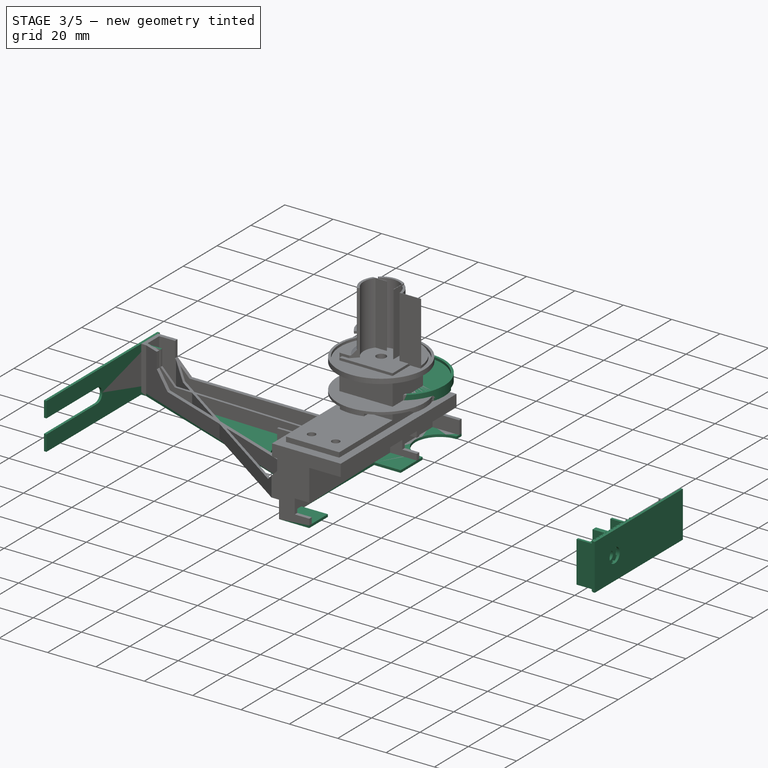
[diagram: stage 3 of 5 — iso view after this stage's code; geometry added in this stage tinted green]
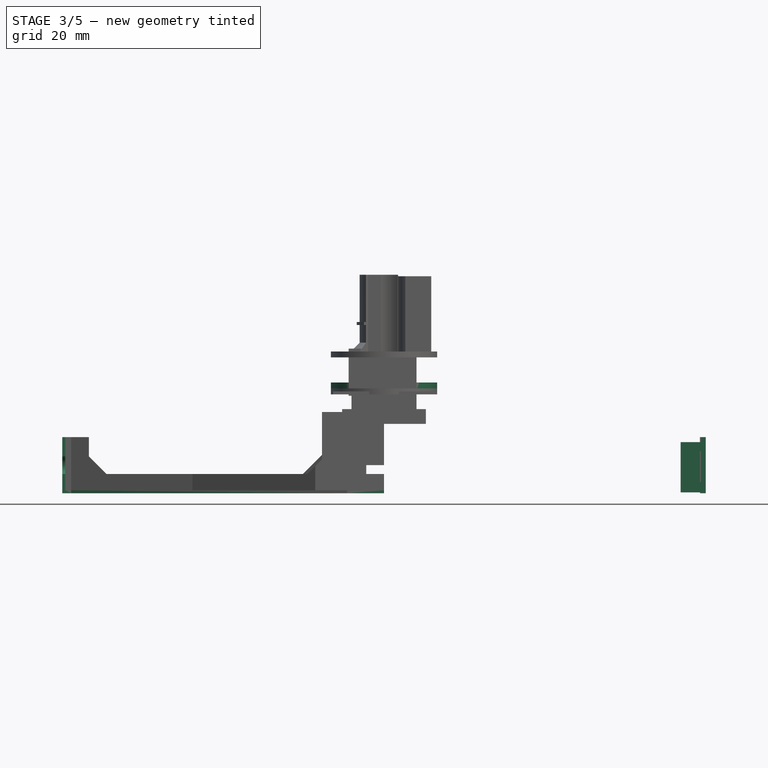
[diagram: stage 3 of 5 — front view after this stage's code; geometry added in this stage tinted green]
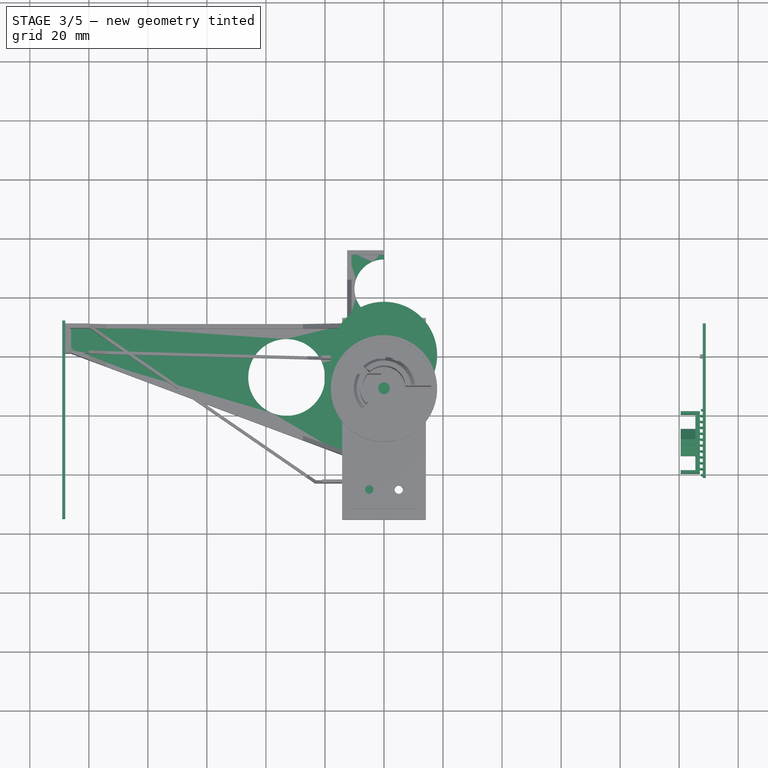
[diagram: stage 3 of 5 — top view after this stage's code; geometry added in this stage tinted green]
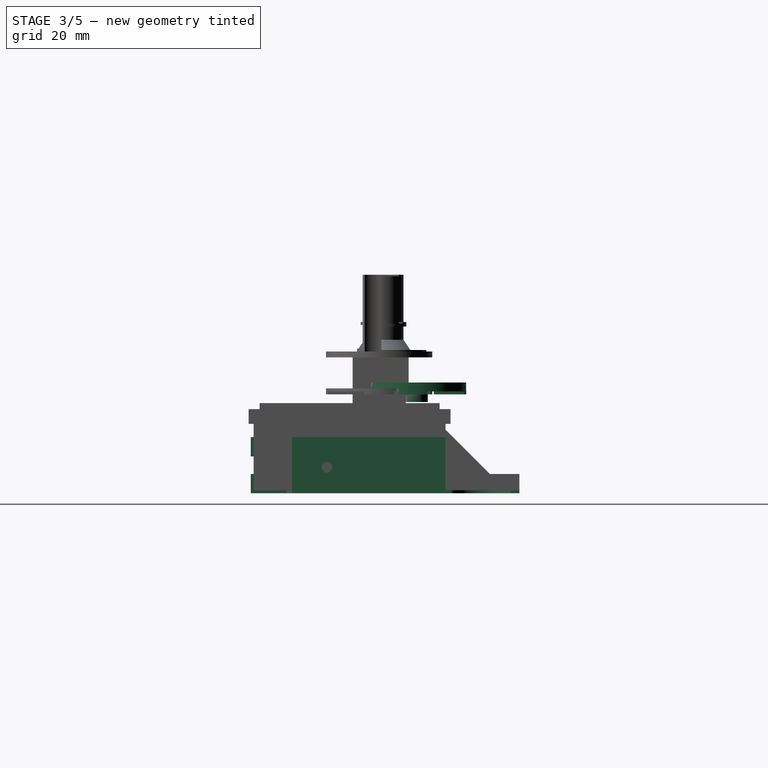
[diagram: stage 3 of 5 — right view after this stage's code; geometry added in this stage tinted green]
FEATURE [Sketcher::SketchObject] Sketch018
  FullyConstrained = true
  Placement = pos=(0,0,0) rot=(1,0,0;1.5708rad)
  sketch-geometry (11):
    g0: LineSegment StartX=7.25 StartY=36 StartZ=0 EndX=7.25 EndY=10 EndZ=0
    g1: LineSegment StartX=7.25 StartY=10 StartZ=0 EndX=16 EndY=10 EndZ=0
    g2: LineSegment StartX=16 StartY=10 StartZ=0 EndX=16 EndY=11 EndZ=0
    g3: LineSegment StartX=16 StartY=11 StartZ=0 EndX=10.6 EndY=11 EndZ=0
    g4: LineSegment StartX=10.6 StartY=11 StartZ=0 EndX=8.25 EndY=14.5 EndZ=0
    g5: LineSegment StartX=8.25 StartY=14.5 StartZ=0 EndX=8.25 EndY=19 EndZ=0
    g6: LineSegment StartX=8.25 StartY=19 StartZ=0 EndX=9.25 EndY=19 EndZ=0
    g7: LineSegment StartX=9.25 StartY=19 StartZ=0 EndX=9.25 EndY=20 EndZ=0
    g8: LineSegment StartX=9.25 StartY=20 StartZ=0 EndX=8.25 EndY=20 EndZ=0
    g9: LineSegment StartX=8.25 StartY=20 StartZ=0 EndX=8.25 EndY=36 EndZ=0
    g10: LineSegment StartX=8.25 StartY=36 StartZ=0 EndX=7.25 EndY=36 EndZ=0
  constraints (33):
    c: Vertical(g0)
    c: Coincident(g0,g1)
    c: Horizontal(g1)
    c: Coincident(g1,g2)
    c: Vertical(g2)
    c: Coincident(g2,g3)
    c: Horizontal(g3)
    c: Coincident(g3,g4)
    c: Coincident(g4,g5)
    c: Vertical(g5)
    c: Coincident(g5,g6)
    c: Horizontal(g6)
    c: Coincident(g6,g7)
    c: Vertical(g7)
    c: Coincident(g7,g8)
    c: Horizontal(g8)
    c: Coincident(g8,g9)
    c: Vertical(g9)
    c: Coincident(g9,g10)
    c: Coincident(g10,g0)
    c: Horizontal(g10)
    c: DistanceY(g0) = 10
    c: DistanceX(g0) = 7.25
    c: DistanceY(g0,g0) = 26
    c: DistanceX(g10,g10) = 1
    c: Vertical(g8,g5)
    c: DistanceY(g0,g5) = 9
    c: DistanceY(g2,g2) = 1
    c: DistanceX(g1) = 16
    c: DistanceX(g6,g6) = 1
    c: DistanceY(g7,g7) = 1
    c: DistanceX(g3) = 10.6
    c: DistanceY(g4) = 14.5
FEATURE [Sketcher::SketchObject] Sketch019
  FullyConstrained = false
  Placement = pos=(0,0,-26.5) rot=(0,0,1;0rad)
  sketch-geometry (17):
    g0: LineSegment StartX=-106 StartY=11 StartZ=0 EndX=-12.5 EndY=11 EndZ=0
    g1: LineSegment StartX=-1.8e-15 StartY=-54 StartZ=0 EndX=-12.5 EndY=-54 EndZ=0
    g2: LineSegment StartX=-108 StartY=1 StartZ=0 EndX=-108 EndY=11 EndZ=0
    g3: LineSegment StartX=-11 StartY=0 StartZ=0 EndX=-1.8e-15 EndY=0 EndZ=0
    g4: LineSegment StartX=-1.8e-15 StartY=-43 StartZ=0 EndX=-11 EndY=-43 EndZ=0
    g5: LineSegment StartX=-11 StartY=-43 StartZ=0 EndX=-11 EndY=0 EndZ=0
    g6: LineSegment StartX=-106 StartY=1 StartZ=0 EndX=-12.5 EndY=-34 EndZ=0
    g7: LineSegment StartX=-1.8e-15 StartY=-43 StartZ=0 EndX=-1.8e-15 EndY=-54 EndZ=0
    g8: LineSegment StartX=-108 StartY=1 StartZ=0 EndX=-106 EndY=1 EndZ=0
    g9: Circle CenterX=-33 CenterY=-7 CenterZ=0 NormalX=0 NormalY=0 NormalZ=1 AngleXU=0 Radius=13
    g10: LineSegment StartX=6e-16 StartY=36 StartZ=0 EndX=-12.5 EndY=36 EndZ=0
    g11: LineSegment StartX=-12.5 StartY=36 StartZ=0 EndX=-12.5 EndY=11 EndZ=0
    g12: ArcOfCircle CenterX=0 CenterY=23 CenterZ=0 NormalX=0 NormalY=0 NormalZ=1 AngleXU=0 Radius=10 StartAngle=1.5708 EndAngle=4.71239
    g13: LineSegment StartX=6e-16 StartY=36 StartZ=0 EndX=6e-16 EndY=33 EndZ=0
    g14: LineSegment StartX=-1.8e-15 StartY=13 StartZ=0 EndX=-1.8e-15 EndY=0 EndZ=0
    g15: LineSegment StartX=-12.5 StartY=-34 StartZ=0 EndX=-12.5 EndY=-54 EndZ=0
    g16: LineSegment StartX=-106 StartY=11 StartZ=0 EndX=-108 EndY=11 EndZ=0
  constraints (50):
    c: Horizontal(g1)
    c: Vertical(g2)
    c: Coincident(g4,g5)
    c: Coincident(g5,g3)
    c: Horizontal(g3)
    c: Horizontal(g4)
    c: Vertical(g5)
    c: PointOnObject(g3,g-1)
    c: DistanceY(g4,g3) = 43
    c: DistanceX(g3) = -11
    c: PointOnObject(g4,g-2)
    c: Coincident(g7,g4)
    c: Coincident(g7,g1)
    c: Vertical(g7)
    c: Vertical(g3,g4)
    c: Coincident(g8,g2)
    c: Horizontal(g8)
    c: DistanceY(g0) = 11
    c: Vertical(g0,g1)
    c: Horizontal(g10)
    c: Coincident(g10,g11)
    c: Coincident(g11,g0)
    c: Vertical(g11)
    c: DistanceY(g10) = 36
    c: PointOnObject(g12,g-2)
    c: PointOnObject(g12,g-2)
    c: Coincident(g13,g10)
    c: Coincident(g13,g12)
    c: Vertical(g13)
    c: Coincident(g14,g12)
    c: Coincident(g14,g3)
    c: Vertical(g14)
    c: Radius(g12) = 10
    c: DistanceY(g2,g2) = 10
    c: Radius(g9) = 13
    c: Vertical(g6,g0)
    c: Coincident(g15,g6)
    c: Coincident(g15,g1)
    c: DistanceX(g2) = -108
    c: Vertical(g6,g0)
    c: Coincident(g16,g0)
    c: Coincident(g16,g2)
    c: Horizontal(g16)
    c: DistanceX(g16,g16) = 2
    c: Coincident(g8,g6)
    c: DistanceX(g1) = -12.5
    c: DistanceY(g1) = -54
    c: DistanceY(g6) = -34
    c: Horizontal(g0)
    c: DistanceY(g12) = 23
FEATURE [Part::Extrusion] Extrude015
  Base = -> Sketch019
  Dir = (0,0,1)
  DirMode = 2
  FaceMakerClass = Part::FaceMakerBullseye
  LengthFwd = 1
  LengthRev = 0
  Solid = true
  Symmetric = false
FEATURE [Sketcher::SketchObject] Sketch027
  FullyConstrained = true
  Placement = pos=(-104,-22,-17.7) rot=(0.57735,-0.57735,-0.57735;2.0944rad)
  expr: Constraints[36] = Spreadsheet.r3_4_40
  expr: Constraints[37] = Spreadsheet.r3_4_40 + 1.5
  sketch-geometry (14):
    g0: LineSegment StartX=3.2909 StartY=-1.9 StartZ=0 EndX=3.2909 EndY=1.9 EndZ=0
    g1: LineSegment StartX=3.2909 StartY=1.9 StartZ=0 EndX=4e-16 EndY=3.8 EndZ=0
    g2: LineSegment StartX=4e-16 StartY=3.8 StartZ=0 EndX=-3.2909 EndY=1.9 EndZ=0
    g3: LineSegment StartX=-3.2909 StartY=1.9 StartZ=0 EndX=-3.2909 EndY=-1.9 EndZ=0
    g4: LineSegment StartX=-3.2909 StartY=-1.9 StartZ=0 EndX=0 EndY=-3.8 EndZ=0
    g5: LineSegment StartX=0 StartY=-3.8 StartZ=0 EndX=3.2909 EndY=-1.9 EndZ=0
    g6: Circle CenterX=0 CenterY=0 CenterZ=0 NormalX=0 NormalY=0 NormalZ=1 AngleXU=0 Radius=3.8
    g7: LineSegment StartX=4.58993 StartY=-2.65 StartZ=0 EndX=4.58993 EndY=2.65 EndZ=0
    g8: LineSegment StartX=4.58993 StartY=2.65 StartZ=0 EndX=9e-16 EndY=5.3 EndZ=0
    g9: LineSegment StartX=9e-16 StartY=5.3 StartZ=0 EndX=-4.58993 EndY=2.65 EndZ=0
    g10: LineSegment StartX=-4.58993 StartY=2.65 StartZ=0 EndX=-4.58993 EndY=-2.65 EndZ=0
    g11: LineSegment StartX=-4.58993 StartY=-2.65 StartZ=0 EndX=0 EndY=-5.3 EndZ=0
    g12: LineSegment StartX=0 StartY=-5.3 StartZ=0 EndX=4.58993 EndY=-2.65 EndZ=0
    g13: Circle CenterX=0 CenterY=0 CenterZ=0 NormalX=0 NormalY=0 NormalZ=1 AngleXU=0 Radius=5.3
  constraints (32):
    c: Coincident(g0,g1)
    c: Coincident(g1,g2)
    c: Coincident(g2,g3)
    c: Coincident(g3,g4)
    c: Coincident(g4,g5)
    c: Coincident(g5,g0)
    c: Equal(g0, g1-g5) x5
    c: PointOnObject(g0,g6)
    c: PointOnObject(g1,g6)
    c: PointOnObject(g2,g6)
    c: PointOnObject(g3,g6)
    c: PointOnObject(g4,g6)
    c: PointOnObject(g5,g6)
    c: Coincident(g6,g-1)
    c: Coincident(g7,g8)
    c: Coincident(g8,g9)
    c: Coincident(g9,g10)
    c: Coincident(g10,g11)
    c: Coincident(g11,g12)
    c: Coincident(g12,g7)
    c: Equal(g7, g8-g12) x5
    c: PointOnObject(g7,g13)
    c: PointOnObject(g8,g13)
    c: PointOnObject(g9,g13)
    c: PointOnObject(g10,g13)
    c: PointOnObject(g11,g13)
    c: PointOnObject(g12,g13)
    c: Coincident(g13,g-1)
    c: Radius(g6) = 3.8
    c: Radius(g13) = 5.3
    c: Vertical(g7)
    c: Vertical(g0)
FEATURE [Part::Extrusion] Extrude023
  Base = -> Sketch027
  Dir = (-1,0,0)
  DirMode = 2
  FaceMakerClass = Part::FaceMakerBullseye
  LengthFwd = 0
  LengthRev = 5
  Solid = true
  Symmetric = false
FEATURE [Sketcher::SketchObject] Sketch028
  FullyConstrained = true
  Placement = pos=(-105.5,-22,-15) rot=(0.57735,-0.57735,-0.57735;2.0944rad)
  expr: Constraints[1] = Spreadsheet.r_4_40
  sketch-geometry (5):
    g0: Circle CenterX=0 CenterY=-2.7 CenterZ=0 NormalX=0 NormalY=0 NormalZ=1 AngleXU=0 Radius=1.8
    g1: LineSegment StartX=-10.5 StartY=5.8 StartZ=0 EndX=10.5 EndY=5.8 EndZ=0
    g2: LineSegment StartX=10.5 StartY=5.8 StartZ=0 EndX=10.5 EndY=-11.2 EndZ=0
    g3: LineSegment StartX=10.5 StartY=-11.2 StartZ=0 EndX=-10.5 EndY=-11.2 EndZ=0
    g4: LineSegment StartX=-10.5 StartY=-11.2 StartZ=0 EndX=-10.5 EndY=5.8 EndZ=0
  constraints (15):
    c: PointOnObject(g0,g-2)
    c: Radius(g0) = 1.8
    c: Coincident(g1,g2)
    c: Coincident(g2,g3)
    c: Coincident(g3,g4)
    c: Coincident(g4,g1)
    c: Horizontal(g1)
    c: Horizontal(g3)
    c: Vertical(g2)
    c: Vertical(g4)
    c: DistanceX(g1) = 10.5
    c: DistanceX(g1,g1) = 21
    c: DistanceY(g0,g1) = 8.5
    c: DistanceY(g3,g0) = 8.5
    c: DistanceY(g0) = -2.7
FEATURE [Part::Extrusion] Extrude024
  Base = -> Sketch028
  Dir = (-1,0,0)
  DirMode = 2
  FaceMakerClass = Part::FaceMakerBullseye
  LengthFwd = 0
  LengthRev = 1.5
  Solid = true
  Symmetric = false
FEATURE [Sketcher::SketchObject] Sketch030
  FullyConstrained = true
  Placement = pos=(0,-22,0) rot=(1,0,0;1.5708rad)
  sketch-geometry (8):
    g0: LineSegment StartX=-104 StartY=-26.2 StartZ=0 EndX=-104 EndY=-22 EndZ=0
    g1: LineSegment StartX=-104 StartY=-22 StartZ=0 EndX=-99 EndY=-22 EndZ=0
    g2: LineSegment StartX=-99 StartY=-22 StartZ=0 EndX=-99 EndY=-26.2 EndZ=0
    g3: LineSegment StartX=-99 StartY=-26.2 StartZ=0 EndX=-104 EndY=-26.2 EndZ=0
    g4: LineSegment StartX=-99 StartY=-13.5 StartZ=0 EndX=-104 EndY=-13.5 EndZ=0
    g5: LineSegment StartX=-104 StartY=-13.5 StartZ=0 EndX=-104 EndY=-9.2 EndZ=0
    g6: LineSegment StartX=-104 StartY=-9.2 StartZ=0 EndX=-99 EndY=-9.2 EndZ=0
    g7: LineSegment StartX=-99 StartY=-9.2 StartZ=0 EndX=-99 EndY=-13.5 EndZ=0
  constraints (24):
    c: Vertical(g0)
    c: Coincident(g0,g1)
    c: Horizontal(g1)
    c: Coincident(g1,g2)
    c: Vertical(g2)
    c: Coincident(g3,g0)
    c: Horizontal(g3)
    c: DistanceX(g1,g1) = 5
    c: DistanceX(g0) = -104
    c: Coincident(g2,g3)
    c: Coincident(g4,g5)
    c: Coincident(g5,g6)
    c: Coincident(g6,g7)
    c: Coincident(g7,g4)
    c: Horizontal(g4)
    c: Horizontal(g6)
    c: Vertical(g5)
    c: Vertical(g7)
    c: Vertical(g4,g0)
    c: Vertical(g1,g4)
    c: DistanceY(g6) = -9.2
    c: DistanceY(g0) = -22
    c: DistanceY(g0) = -26.2
    c: DistanceY(g4) = -13.5
FEATURE [Part::Extrusion] Extrude026
  Base = -> Sketch030
  Dir = (0,-1,2e-16)
  DirMode = 2
  FaceMakerClass = Part::FaceMakerBullseye
  LengthFwd = 1
  LengthRev = 1
  Solid = true
  Symmetric = false
FEATURE [Sketcher::SketchObject] Sketch031
  FullyConstrained = true
  Placement = pos=(109,0,0) rot=(0.57735,0.57735,0.57735;2.0944rad)
  sketch-geometry (8):
    g0: LineSegment StartX=12 StartY=-26.5 StartZ=0 EndX=-55 EndY=-26.5 EndZ=0
    g1: LineSegment StartX=-55 StartY=-7.5 StartZ=0 EndX=12 EndY=-7.5 EndZ=0
    g2: LineSegment StartX=12 StartY=-7.5 StartZ=0 EndX=12 EndY=-26.5 EndZ=0
    g3: ArcOfCircle CenterX=-25 CenterY=-17 CenterZ=0 NormalX=0 NormalY=0 NormalZ=1 AngleXU=0 Radius=3 StartAngle=4.71239 EndAngle=7.85398
    g4: LineSegment StartX=-55 StartY=-26.5 StartZ=0 EndX=-55 EndY=-20 EndZ=0
    g5: LineSegment StartX=-55 StartY=-20 StartZ=0 EndX=-25 EndY=-20 EndZ=0
    g6: LineSegment StartX=-55 StartY=-7.5 StartZ=0 EndX=-55 EndY=-14 EndZ=0
    g7: LineSegment StartX=-55 StartY=-14 StartZ=0 EndX=-25 EndY=-14 EndZ=0
  constraints (25):
    c: Coincident(g1,g2)
    c: Coincident(g2,g0)
    c: Horizontal(g0)
    c: Horizontal(g1)
    c: Vertical(g2)
    c: DistanceY(g2,g2) = 19
    c: DistanceY(g0) = -26.5
    c: DistanceX(g0) = 12
    c: DistanceX(g0,g0) = 67
    c: Vertical(g1,g0)
    c: Vertical(g3,g3)
    c: Vertical(g3,g3)
    c: Radius(g3) = 3
    c: DistanceY(g3) = -17
    c: DistanceX(g0,g3) = 30
    c: Coincident(g0,g4)
    c: Vertical(g4)
    c: Coincident(g4,g5)
    c: Coincident(g5,g3)
    c: Horizontal(g5)
    c: Coincident(g1,g6)
    c: Vertical(g6)
    c: Coincident(g6,g7)
    c: Coincident(g7,g3)
    c: Horizontal(g7)
FEATURE [Part::Extrusion] Extrude027  label="side fork"
  Base = -> Sketch031
  Dir = (1,-2e-16,2e-16)
  DirMode = 2
  FaceMakerClass = Part::FaceMakerBullseye
  LengthFwd = 0
  LengthRev = 1
  Solid = true
  Symmetric = false
FEATURE [PartDesign::FeatureBase] Clone012
  BaseFeature = -> Extrude027
FEATURE [PartDesign::Body] Body012
  BaseFeature = -> Extrude027
  Group = -> [Clone012]
  Origin = -> Origin012
  Tip = -> Clone012
FEATURE [Part::Mirroring] Part__Mirroring012  label="side fork001"
  Base = (-3.8147e-06,-21.5,-17)
  Normal = (1,0,-1.19209e-07)
  Source = -> Body012
FEATURE [Sketcher::SketchObject] Sketch032
  FullyConstrained = true
  Placement = pos=(0,0,-25.5) rot=(0,0,1;0rad)
  sketch-geometry (8):
    g0: LineSegment StartX=-108 StartY=11 StartZ=0 EndX=-108 EndY=1 EndZ=0
    g1: LineSegment StartX=-108 StartY=1 StartZ=0 EndX=-100 EndY=1 EndZ=0
    g2: LineSegment StartX=-100 StartY=1 StartZ=0 EndX=-100 EndY=2 EndZ=0
    g3: LineSegment StartX=-100 StartY=2 StartZ=0 EndX=-107 EndY=2 EndZ=0
    g4: LineSegment StartX=-107 StartY=2 StartZ=0 EndX=-107 EndY=10 EndZ=0
    g5: LineSegment StartX=-100 StartY=11 StartZ=0 EndX=-108 EndY=11 EndZ=0
    g6: LineSegment StartX=-100 StartY=11 StartZ=0 EndX=-100 EndY=10 EndZ=0
    g7: LineSegment StartX=-100 StartY=10 StartZ=0 EndX=-107 EndY=10 EndZ=0
  constraints (24):
    c: Vertical(g0)
    c: Coincident(g0,g1)
    c: Horizontal(g1)
    c: Coincident(g1,g2)
    c: Vertical(g2)
    c: Coincident(g2,g3)
    c: Horizontal(g3)
    c: Coincident(g3,g4)
    c: Vertical(g4)
    c: Coincident(g5,g0)
    c: Horizontal(g5)
    c: DistanceY(g0) = 11
    c: DistanceX(g0) = -108
    c: DistanceX(g1,g1) = 8
    c: DistanceY(g2,g2) = 1
    c: Coincident(g5,g6)
    c: Vertical(g6)
    c: Coincident(g6,g7)
    c: Coincident(g7,g4)
    c: Horizontal(g7)
    c: DistanceY(g6,g6) = 1
    c: Vertical(g6,g2)
    c: DistanceX(g0,g4) = 1
    c: DistanceY(g0,g0) = 10
FEATURE [Part::Extrusion] Extrude028
  Base = -> Sketch032
  Dir = (0,0,1)
  DirMode = 2
  FaceMakerClass = Part::FaceMakerBullseye
  LengthFwd = 18
  LengthRev = 0
  Solid = true
  Symmetric = false
FEATURE [Sketcher::SketchObject] Sketch033
  FullyConstrained = true
  Placement = pos=(0,0,-7.5) rot=(0,0,1;0rad)
  sketch-geometry (4):
    g0: LineSegment StartX=108 StartY=-41 StartZ=0 EndX=109 EndY=-41 EndZ=0
    g1: LineSegment StartX=109 StartY=-41 StartZ=0 EndX=109 EndY=11 EndZ=0
    g2: LineSegment StartX=109 StartY=11 StartZ=0 EndX=108 EndY=11 EndZ=0
    g3: LineSegment StartX=108 StartY=11 StartZ=0 EndX=108 EndY=-41 EndZ=0
  constraints (12):
    c: Horizontal(g0)
    c: Coincident(g0,g1)
    c: Vertical(g1)
    c: Coincident(g1,g2)
    c: Horizontal(g2)
    c: DistanceX(g1) = 109
    c: DistanceX(g2,g2) = 1
    c: DistanceY(g1) = 11
    c: Coincident(g2,g3)
    c: Vertical(g3)
    c: Coincident(g0,g3)
    c: DistanceY(g1,g1) = 52
FEATURE [Part::Extrusion] Extrude029
  Base = -> Sketch033
  Dir = (0,0,1)
  DirMode = 2
  FaceMakerClass = Part::FaceMakerBullseye
  LengthFwd = 0
  LengthRev = 19
  Solid = true
  Symmetric = false
FEATURE [Sketcher::SketchObject] Sketch034
  FullyConstrained = true
  Placement = pos=(0,0,-7.5) rot=(0,0,1;0rad)
  sketch-geometry (4):
    g0: LineSegment StartX=108 StartY=-18 StartZ=0 EndX=107.4 EndY=-18 EndZ=0
    g1: LineSegment StartX=107.4 StartY=-18 StartZ=0 EndX=107.4 EndY=-18.5 EndZ=0
    g2: LineSegment StartX=107.4 StartY=-18.5 StartZ=0 EndX=108 EndY=-18.5 EndZ=0
    g3: LineSegment StartX=108 StartY=-18.5 StartZ=0 EndX=108 EndY=-18 EndZ=0
  constraints (12):
    c: Coincident(g0,g1)
    c: Coincident(g1,g2)
    c: Coincident(g2,g3)
    c: Coincident(g3,g0)
    c: Horizontal(g0)
    c: Horizontal(g2)
    c: Vertical(g1)
    c: Vertical(g3)
    c: DistanceX(g0) = 108
    c: DistanceX(g0,g0) = 0.6
    c: DistanceY(g3,g3) = 0.5
    c: DistanceY(g0) = -18
FEATURE [Part::Extrusion] Extrude030
  Base = -> Sketch034
  Dir = (0,0,1)
  DirMode = 2
  FaceMakerClass = Part::FaceMakerBullseye
  LengthFwd = 0
  LengthRev = 19
  Solid = true
  Symmetric = false
FEATURE [Part::FeaturePython] Array002  # Draft array (typed FeaturePython)
  Angle = 360
  ArrayType = 0
  Axis = (0,0,1)
  Base = -> Extrude030
  Center = (0,0,0)
  Count = 12
  ExpandArray = false
  Fuse = false
  IntervalAxis = (0,0,0)
  IntervalX = (100,0,0)
  IntervalY = (0,-2,0)
  IntervalZ = (0,0,100)
  NumberCircles = 3
  NumberPolar = 5
  NumberX = 1
  NumberY = 12
  NumberZ = 1
  PlacementList = 12 placements: arithmetic series from (0,0,0) step (0,-2,0) to (0,-22,0)
  RadialDistance = 50
  ScaleList = (12) [(1,1,1),(1,1,1),(1,1,1),(1,1,1),(1,1,1),(1,1,1),(1,1,1),(1,1,1),(1,1,1),(1,1,1),(1,1,1),(1,1,1)]
  Symmetry = 1
  TangentialDistance = 25
FEATURE [Sketcher::SketchObject] Sketch035
  FullyConstrained = true
  Placement = pos=(110,0,0) rot=(0.57735,0.57735,0.57735;2.0944rad)
  sketch-geometry (1):
    g0: Circle CenterX=-29.25 CenterY=-17 CenterZ=0 NormalX=0 NormalY=0 NormalZ=1 AngleXU=0 Radius=3
  constraints (3):
    c: Radius(g0) = 3
    c: DistanceX(g0) = -29.25
    c: DistanceY(g0) = -17
FEATURE [Part::Extrusion] Extrude031  label="side fork002"
  Base = -> Sketch035
  Dir = (1,0,0)
  DirMode = 2
  FaceMakerClass = Part::FaceMakerBullseye
  LengthFwd = 0
  LengthRev = 3
  Solid = true
  Symmetric = false
FEATURE [Sketcher::SketchObject] Sketch036
  FullyConstrained = true
  Placement = pos=(0,0,-9.2) rot=(0,0,1;0rad)
  sketch-geometry (4):
    g0: LineSegment StartX=-105.5 StartY=-11.75 StartZ=0 EndX=-106.1 EndY=-11.75 EndZ=0
    g1: LineSegment StartX=-106.1 StartY=-11.75 StartZ=0 EndX=-106.1 EndY=-12.25 EndZ=0
    g2: LineSegment StartX=-106.1 StartY=-12.25 StartZ=0 EndX=-105.5 EndY=-12.25 EndZ=0
    g3: LineSegment StartX=-105.5 StartY=-12.25 StartZ=0 EndX=-105.5 EndY=-11.75 EndZ=0
  constraints (12):
    c: Coincident(g0,g1)
    c: Coincident(g1,g2)
    c: Coincident(g2,g3)
    c: Coincident(g3,g0)
    c: Horizontal(g0)
    c: Horizontal(g2)
    c: Vertical(g1)
    c: Vertical(g3)
    c: DistanceX(g0,g0) = 0.6
    c: DistanceY(g3,g3) = 0.5
    c: DistanceX(g0) = -105.5
    c: DistanceY(g0) = -11.75
FEATURE [Part::Extrusion] Extrude032
  Base = -> Sketch036
  Dir = (0,0,1)
  DirMode = 2
  FaceMakerClass = Part::FaceMakerBullseye
  LengthFwd = 0
  LengthRev = 17
  Solid = true
  Symmetric = false
FEATURE [Part::FeaturePython] Array003  # Draft array (typed FeaturePython)
  Angle = 360
  ArrayType = 0
  Axis = (0,0,1)
  Base = -> Extrude032
  Center = (0,0,0)
  Count = 10
  ExpandArray = false
  Fuse = false
  IntervalAxis = (0,0,0)
  IntervalX = (100,0,0)
  IntervalY = (0,-2,0)
  IntervalZ = (0,0,100)
  NumberCircles = 3
  NumberPolar = 5
  NumberX = 1
  NumberY = 10
  NumberZ = 1
  Placement = pos=(0,-1,0) rot=(0,0,1;0rad)
  PlacementList = 10 placements: arithmetic series from (0,0,0) step (0,-2,0) to (0,-18,0)
  RadialDistance = 50
  ScaleList = (10) [(1,1,1),(1,1,1),(1,1,1),(1,1,1),(1,1,1),(1,1,1),(1,1,1),(1,1,1),(1,1,1),(1,1,1)]
  Symmetry = 1
  TangentialDistance = 25
FEATURE [Sketcher::SketchObject] Sketch037
  FullyConstrained = true
  Placement = pos=(-107.5,-22,-15) rot=(0.57735,-0.57735,-0.57735;2.0944rad)
  sketch-geometry (4):
    g0: LineSegment StartX=-12 StartY=2.7 StartZ=0 EndX=12 EndY=2.7 EndZ=0
    g1: LineSegment StartX=12 StartY=2.7 StartZ=0 EndX=12 EndY=-7.7 EndZ=0
    g2: LineSegment StartX=12 StartY=-7.7 StartZ=0 EndX=-12 EndY=-7.7 EndZ=0
    g3: LineSegment StartX=-12 StartY=-7.7 StartZ=0 EndX=-12 EndY=2.7 EndZ=0
  constraints (12):
    c: Coincident(g0,g1)
    c: Coincident(g1,g2)
    c: Coincident(g2,g3)
    c: Coincident(g3,g0)
    c: Horizontal(g0)
    c: Horizontal(g2)
    c: Vertical(g1)
    c: Vertical(g3)
    c: DistanceY(g1) = -7.7
    c: DistanceY(g0) = 2.7
    c: DistanceX(g0) = 12
    c: DistanceX(g0) = -12
FEATURE [Part::Extrusion] Extrude033
  Base = -> Sketch037
  Dir = (-1,-2e-16,2e-16)
  DirMode = 2
  FaceMakerClass = Part::FaceMakerBullseye
  LengthFwd = 0
  LengthRev = 3.5
  Solid = true
  Symmetric = false
FEATURE [Part::Cut] Cut005
  Base = -> Array003
  Tool = -> Extrude033
FEATURE [Sketcher::SketchObject] Sketch038
  FullyConstrained = true
  Placement = pos=(0,0,-9.2) rot=(0,0,1;0rad)
  sketch-geometry (8):
    g0: LineSegment StartX=-104 StartY=-11.5 StartZ=0 EndX=-99 EndY=-11.5 EndZ=0
    g1: LineSegment StartX=-99 StartY=-11.5 StartZ=0 EndX=-99 EndY=-12.5 EndZ=0
    g2: LineSegment StartX=-99 StartY=-12.5 StartZ=0 EndX=-104 EndY=-12.5 EndZ=0
    g3: LineSegment StartX=-104 StartY=-12.5 StartZ=0 EndX=-104 EndY=-11.5 EndZ=0
    g4: LineSegment StartX=-104 StartY=-32.5 StartZ=0 EndX=-99 EndY=-32.5 EndZ=0
    g5: LineSegment StartX=-99 StartY=-32.5 StartZ=0 EndX=-99 EndY=-31.5 EndZ=0
    g6: LineSegment StartX=-99 StartY=-31.5 StartZ=0 EndX=-104 EndY=-31.5 EndZ=0
    g7: LineSegment StartX=-104 StartY=-31.5 StartZ=0 EndX=-104 EndY=-32.5 EndZ=0
  constraints (24):
    c: Coincident(g0,g1)
    c: Coincident(g1,g2)
    c: Coincident(g2,g3)
    c: Coincident(g3,g0)
    c: Horizontal(g0)
    c: Horizontal(g2)
    c: Vertical(g1)
    c: Vertical(g3)
    c: Coincident(g4,g5)
    c: Coincident(g5,g6)
    c: Coincident(g6,g7)
    c: Coincident(g7,g4)
    c: Horizontal(g4)
    c: Horizontal(g6)
    c: Vertical(g5)
    c: Vertical(g7)
    c: DistanceY(g4) = -32.5
    c: DistanceY(g0) = -11.5
    c: DistanceX(g0) = -104
    c: Vertical(g6,g2)
    c: DistanceY(g1,g1) = 1
    c: DistanceY(g5,g5) = 1
    c: Vertical(g5,g1)
    c: DistanceX(g0,g0) = 5
FEATURE [Part::Extrusion] Extrude034
  Base = -> Sketch038
  Dir = (0,0,1)
  DirMode = 2
  FaceMakerClass = Part::FaceMakerBullseye
  LengthFwd = 0
  LengthRev = 17
  Solid = true
  Symmetric = false
FEATURE [Part::Compound] Compound007  label="track farstener"
  Links = -> [Extrude023,Extrude024,Extrude026,Cut005,Extrude034]
  Placement = pos=(0,-6,0) rot=(0,0,1;0rad)
FEATURE [PartDesign::FeatureBase] Clone011
  BaseFeature = -> Compound007
FEATURE [PartDesign::Body] Body011
  BaseFeature = -> Compound007
  Group = -> [Clone011]
  Origin = -> Origin011
  Tip = -> Clone011
FEATURE [Part::Mirroring] Part__Mirroring011  label="track farstener001"
  Base = (0,0,0)
  Normal = (1,0,0)
  Placement = pos=(1.5,-7.2,0) rot=(0,0,1;0rad)
  Source = -> Body011
FEATURE [Sketcher::SketchObject] Sketch039
  FullyConstrained = true
  Placement = pos=(0,0,0) rot=(1,0,0;1.5708rad)
  expr: Constraints[12] = Spreadsheet.servo_r + 2
  expr: Constraints[17] = Spreadsheet.cf_radius
  sketch-geometry (6):
    g0: LineSegment StartX=17 StartY=11 StartZ=0 EndX=17 EndY=10 EndZ=0
    g1: LineSegment StartX=17 StartY=10 StartZ=0 EndX=7.25 EndY=10 EndZ=0
    g2: LineSegment StartX=7.25 StartY=10 StartZ=0 EndX=7.25 EndY=9 EndZ=0
    g3: LineSegment StartX=7.25 StartY=9 StartZ=0 EndX=18 EndY=9 EndZ=0
    g4: LineSegment StartX=18 StartY=9 StartZ=0 EndX=18 EndY=11 EndZ=0
    g5: LineSegment StartX=18 StartY=11 StartZ=0 EndX=17 EndY=11 EndZ=0
  constraints (18):
    c: Vertical(g0)
    c: Coincident(g0,g1)
    c: Horizontal(g1)
    c: Coincident(g1,g2)
    c: Vertical(g2)
    c: Coincident(g2,g3)
    c: Horizontal(g3)
    c: Coincident(g3,g4)
    c: Vertical(g4)
    c: Coincident(g4,g5)
    c: Coincident(g5,g0)
    c: Horizontal(g5)
    c: DistanceX(g3) = 18
    c: DistanceY(g4) = 11
    c: DistanceY(g0) = 10
    c: DistanceX(g5,g5) = 1
    c: DistanceY(g2,g2) = 1
    c: DistanceX(g2) = 7.25
FEATURE [Part::Revolution] Revolve
  Angle = 360
  Axis = (0,0,1)
  Base = (0,0,0)
  FaceMakerClass = Part::FaceMakerBullseye
  Solid = true
  Source = -> Sketch039
  Symmetric = false
FEATURE [Sketcher::SketchObject] Sketch040
  FullyConstrained = true
  Placement = pos=(0,0,0) rot=(1,0,0;1.5708rad)
  expr: Constraints[18] = Spreadsheet.m3_r1
  expr: Constraints[8] = Spreadsheet.servo_r + 2
  sketch-geometry (8):
    g0: LineSegment StartX=18 StartY=8 StartZ=0 EndX=5 EndY=8 EndZ=0
    g1: LineSegment StartX=1.7 StartY=8 StartZ=0 EndX=1.7 EndY=9 EndZ=0
    g2: LineSegment StartX=1.7 StartY=9 StartZ=0 EndX=18 EndY=9 EndZ=0
    g3: LineSegment StartX=18 StartY=9 StartZ=0 EndX=18 EndY=8 EndZ=0
    g4: LineSegment StartX=1.7 StartY=8 StartZ=0 EndX=3 EndY=8 EndZ=0
    g5: LineSegment StartX=3 StartY=8 StartZ=0 EndX=3 EndY=4.4 EndZ=0
    g6: LineSegment StartX=3 StartY=4.4 StartZ=0 EndX=5 EndY=4.4 EndZ=0
    g7: LineSegment StartX=5 StartY=4.4 StartZ=0 EndX=5 EndY=8 EndZ=0
  constraints (24):
    c: Horizontal(g0)
    c: Vertical(g1)
    c: Coincident(g1,g2)
    c: Horizontal(g2)
    c: Coincident(g2,g3)
    c: Vertical(g3)
    c: DistanceY(g1) = 9
    c: Coincident(g0,g3)
    c: DistanceX(g2) = 18
    c: Coincident(g1,g4)
    c: Horizontal(g4)
    c: Coincident(g4,g5)
    c: Vertical(g5)
    c: Coincident(g5,g6)
    c: Horizontal(g6)
    c: Coincident(g6,g7)
    c: Coincident(g7,g0)
    c: Vertical(g7)
    c: DistanceX(g1) = 1.7
    c: DistanceX(g4) = 3
    c: DistanceX(g6,g6) = 2
    c: DistanceY(g1,g1) = 1
    c: Horizontal(g0,g4)
    c: DistanceY(g5,g5) = 3.6
FEATURE [Part::Revolution] Revolve001
  Angle = 360
  Axis = (0,0,1)
  Base = (0,0,0)
  FaceMakerClass = Part::FaceMakerBullseye
  Solid = true
  Source = -> Sketch040
  Symmetric = false
FEATURE [Sketcher::SketchObject] Sketch041
  FullyConstrained = true
  Placement = pos=(0,0,0) rot=(1,0,0;3.14159rad)
  expr: Constraints[0] = Spreadsheet.servo_r + 2
  sketch-geometry (4):
    g0: ArcOfCircle CenterX=0 CenterY=0 CenterZ=0 NormalX=0 NormalY=0 NormalZ=1 AngleXU=0 Radius=18 StartAngle=6.00171 EndAngle=6.56467
    g1: LineSegment StartX=7 StartY=-5 StartZ=0 EndX=7 EndY=5 EndZ=0
    g2: LineSegment StartX=17.2916 StartY=5 StartZ=0 EndX=7 EndY=5 EndZ=0
    g3: LineSegment StartX=7 StartY=-5 StartZ=0 EndX=17.2916 EndY=-5 EndZ=0
  constraints (12):
    c: Radius(g0) = 18
    c: DistanceY(g0) = 5
    c: DistanceY(g0) = -5
    c: Coincident(g2,g0)
    c: Coincident(g2,g1)
    c: Horizontal(g2)
    c: Coincident(g3,g0)
    c: Horizontal(g3)
    c: Coincident(g1,g3)
    c: Vertical(g1)
    c: DistanceX(g1) = 7
    c: Coincident(g0,g-1)
FEATURE [Part::Extrusion] Extrude035
  Base = -> Sketch041
  Dir = (0,0,-1)
  DirMode = 2
  FaceMakerClass = Part::FaceMakerBullseye
  LengthFwd = 1
  LengthRev = 0
  Solid = true
  Symmetric = false
FEATURE [Part::FeaturePython] Array004  # Draft array (typed FeaturePython)
  Angle = 360
  ArrayType = 1
  Axis = (0,0,1)
  Base = -> Extrude035
  Center = (0,0,0)
  Count = 4
  ExpandArray = false
  Fuse = false
  IntervalAxis = (0,0,0)
  IntervalX = (100,0,0)
  IntervalY = (0,100,0)
  IntervalZ = (0,0,100)
  NumberCircles = 3
  NumberPolar = 4
  NumberX = 2
  NumberY = 2
  NumberZ = 1
  Placement = pos=(0,0,8) rot=(0,0,1;0rad)
  PlacementList = 4 placements: [(0,0,0),(0,0,0),(0,0,0),(0,0,0)]
  RadialDistance = 50
  ScaleList = (4) [(1,1,1),(1,1,1),(1,1,1),(1,1,1)]
  Symmetry = 1
  TangentialDistance = 25
FEATURE [Part::Compound] Compound010  label="PLA horn"
  Links = -> [Array004,Revolve001]
FEATURE [Part::Compound] Compound009
  Links = -> [Array002,Extrude029,Extrude040]
FEATURE [Part::Cut] Cut004  label="side fork003"
  Base = -> Compound009
  Tool = -> Extrude031
FEATURE [Part::Compound] Compound005
  Links = -> [Extrude015,Cut011]
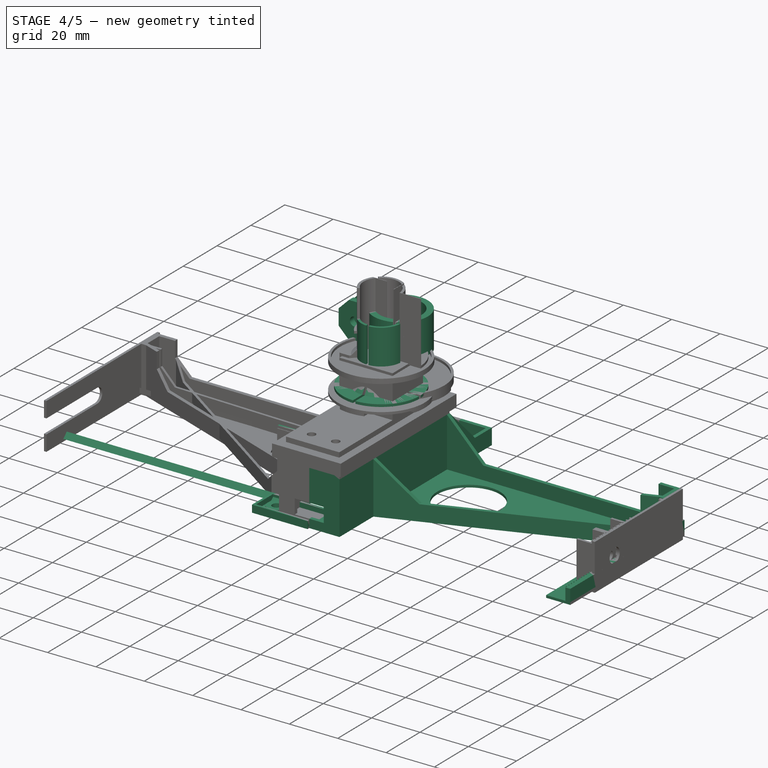
[diagram: stage 4 of 5 — iso view after this stage's code; geometry added in this stage tinted green]
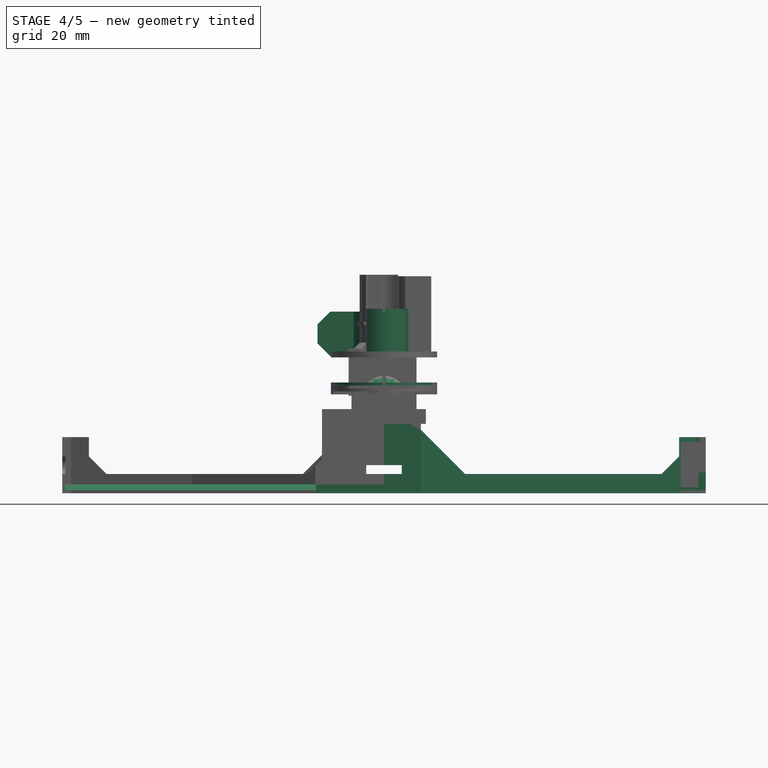
[diagram: stage 4 of 5 — front view after this stage's code; geometry added in this stage tinted green]
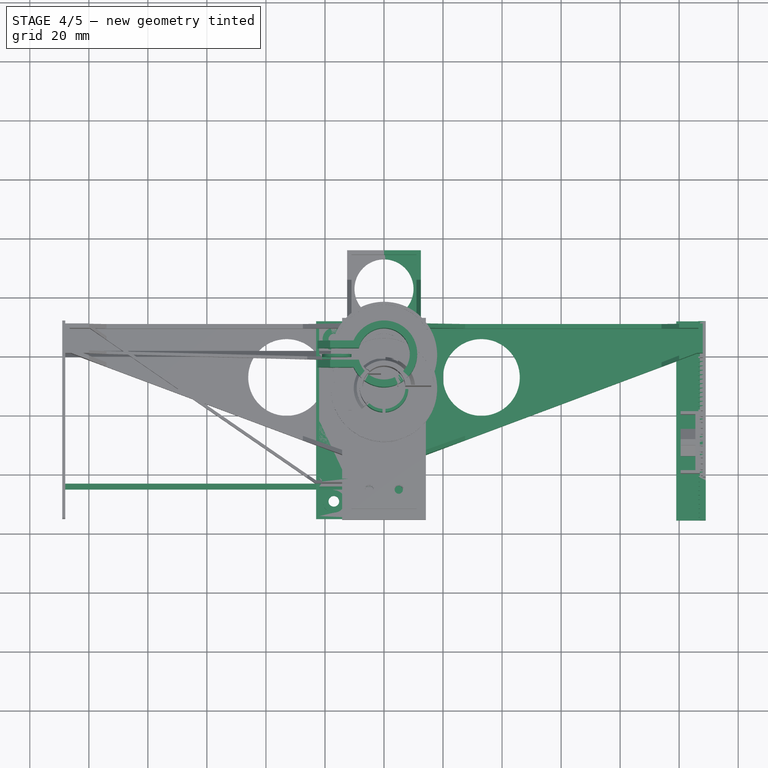
[diagram: stage 4 of 5 — top view after this stage's code; geometry added in this stage tinted green]
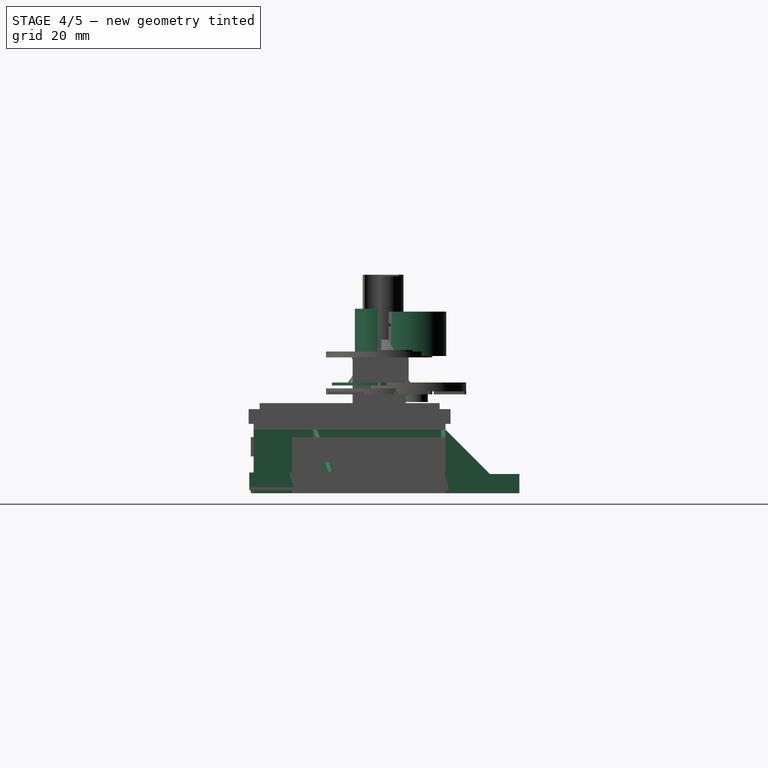
[diagram: stage 4 of 5 — right view after this stage's code; geometry added in this stage tinted green]
FEATURE [Sketcher::SketchObject] Sketch003
  FullyConstrained = false
  sketch-geometry (6):
    g0: LineSegment StartX=-21 StartY=-0.25 StartZ=0 EndX=-11 EndY=-0.25 EndZ=0
    g1: LineSegment StartX=-11 StartY=-0.25 StartZ=0 EndX=-11 EndY=-21.5 EndZ=0
    g2: LineSegment StartX=-21 StartY=-0.25 StartZ=0 EndX=-21 EndY=-1.25 EndZ=0
    g3: LineSegment StartX=-21 StartY=-1.25 StartZ=0 EndX=-12 EndY=-1.25 EndZ=0
    g4: LineSegment StartX=-12 StartY=-1.25 StartZ=0 EndX=-12 EndY=-21.5 EndZ=0
    g5: LineSegment StartX=-12 StartY=-21.5 StartZ=0 EndX=-11 EndY=-21.5 EndZ=0
  constraints (18):
    c: Horizontal(g0)
    c: Coincident(g0,g1)
    c: Vertical(g1)
    c: Coincident(g0,g2)
    c: Vertical(g2)
    c: Coincident(g2,g3)
    c: Horizontal(g3)
    c: Coincident(g3,g4)
    c: Vertical(g4)
    c: Coincident(g4,g5)
    c: Coincident(g5,g1)
    c: Horizontal(g5)
    c: DistanceY(g1,g0) = 21.25
    c: DistanceX(g0,g0) = 10
    c: DistanceX(g4,g1) = 1
    c: DistanceY(g2,g0) = 1
    c: DistanceX(g0,g-1) = 11
    c: DistanceY(g0,g-1) = 0.25
FEATURE [Part::Extrusion] Extrude003
  Base = -> Sketch003
  Dir = (0,0,1)
  DirMode = 2
  FaceMakerClass = Part::FaceMakerBullseye
  LengthFwd = 0
  LengthRev = 27.5
  Placement = pos=(0,0,2) rot=(0,0,1;0rad)
  Solid = true
  Symmetric = false
FEATURE [Sketcher::SketchObject] Sketch006
  FullyConstrained = true
  Placement = pos=(0,0,10) rot=(0,0,1;0rad)
  expr: Constraints[18] = Spreadsheet.r_4_40
  sketch-geometry (7):
    g0: LineSegment StartX=-11 StartY=0 StartZ=0 EndX=0 EndY=0 EndZ=0
    g1: LineSegment StartX=-11 StartY=0 StartZ=0 EndX=-11 EndY=-21.5 EndZ=0
    g2: LineSegment StartX=-23 StartY=12 StartZ=0 EndX=0 EndY=12 EndZ=0
    g3: LineSegment StartX=-23 StartY=-21.5 StartZ=0 EndX=-23 EndY=12 EndZ=0
    g4: LineSegment StartX=0 StartY=12 StartZ=0 EndX=0 EndY=0 EndZ=0
    g5: LineSegment StartX=-23 StartY=-21.5 StartZ=0 EndX=-11 EndY=-21.5 EndZ=0
    g6: Circle CenterX=-17 CenterY=6 CenterZ=0 NormalX=0 NormalY=0 NormalZ=1 AngleXU=0 Radius=1.8
  constraints (21):
    c: Horizontal(g0)
    c: PointOnObject(g0,g-1)
    c: Coincident(g1,g0)
    c: Vertical(g1)
    c: Coincident(g3,g2)
    c: Horizontal(g2)
    c: Vertical(g3)
    c: Coincident(g4,g2)
    c: Coincident(g4,g0)
    c: Vertical(g4)
    c: Coincident(g5,g3)
    c: Coincident(g5,g1)
    c: Horizontal(g5)
    c: DistanceX(g2) = -23
    c: DistanceX(g0,g0) = 11
    c: PointOnObject(g2,g-2)
    c: DistanceY(g3,g2) = 33.5
    c: DistanceY(g1,g0) = 21.5
    c: Radius(g6) = 1.8
    c: DistanceX(g6,g2) = -6
    c: DistanceY(g6,g2) = 6
FEATURE [Part::Extrusion] Extrude004
  Base = -> Sketch006
  Dir = (0,0,1)
  DirMode = 2
  FaceMakerClass = Part::FaceMakerBullseye
  LengthFwd = 1
  LengthRev = 0
  Placement = pos=(0,0,-36.5) rot=(0,0,1;0rad)
  Solid = true
  Symmetric = false
FEATURE [Sketcher::SketchObject] Sketch007
  FullyConstrained = false
  Placement = pos=(0,0,10) rot=(0,0,1;0rad)
  sketch-geometry (14):
    g0: LineSegment StartX=0 StartY=12 StartZ=0 EndX=-23 EndY=12 EndZ=0
    g1: LineSegment StartX=-23 StartY=12 StartZ=0 EndX=-23 EndY=-21.5 EndZ=0
    g2: LineSegment StartX=-23 StartY=-21.5 StartZ=0 EndX=-22 EndY=-21.5 EndZ=0
    g3: LineSegment StartX=-22 StartY=11 StartZ=0 EndX=0 EndY=11 EndZ=0
    g4: LineSegment StartX=0 StartY=11 StartZ=0 EndX=0 EndY=12 EndZ=0
    g5: LineSegment StartX=-22 StartY=1 StartZ=0 EndX=0 EndY=1 EndZ=0
    g6: LineSegment StartX=0 StartY=1 StartZ=0 EndX=0 EndY=-1.6e-15 EndZ=0
    g7: LineSegment StartX=0 StartY=-1.6e-15 StartZ=0 EndX=-11 EndY=-1.6e-15 EndZ=0
    g8: LineSegment StartX=-11 StartY=-1.6e-15 StartZ=0 EndX=-11 EndY=-21.5 EndZ=0
    g9: LineSegment StartX=-11 StartY=-21.5 StartZ=0 EndX=-13 EndY=-21.5 EndZ=0
    g10: LineSegment StartX=-13 StartY=-21.5 StartZ=0 EndX=-13 EndY=-2.25 EndZ=0
    g11: LineSegment StartX=-13 StartY=-2.25 StartZ=0 EndX=-22 EndY=-2.25 EndZ=0
    g12: LineSegment StartX=-22 StartY=-2.25 StartZ=0 EndX=-22 EndY=-21.5 EndZ=0
    g13: LineSegment StartX=-22 StartY=11 StartZ=0 EndX=-22 EndY=1 EndZ=0
  constraints (41):
    c: PointOnObject(g0,g-2)
    c: Horizontal(g0)
    c: Coincident(g0,g1)
    c: Vertical(g1)
    c: Coincident(g1,g2)
    c: Horizontal(g2)
    c: Horizontal(g3)
    c: Coincident(g3,g4)
    c: Coincident(g4,g0)
    c: Vertical(g4)
    c: DistanceY(g3,g0) = 1
    c: DistanceX(g3,g0) = -1
    c: DistanceX(g1,g0) = 23
    c: DistanceY(g1,g0) = 33.5
    c: Coincident(g5,g6)
    c: Coincident(g6,g7)
    c: Horizontal(g5)
    c: Horizontal(g7)
    c: Vertical(g6)
    c: DistanceX(g5,g6) = 22
    c: DistanceY(g5,g6) = -1
    c: DistanceY(g2,g6) = 21.5
    c: Coincident(g7,g8)
    c: Vertical(g8)
    c: Coincident(g8,g9)
    c: Horizontal(g9)
    c: Coincident(g9,g10)
    c: Vertical(g10)
    c: Coincident(g10,g11)
    c: Horizontal(g11)
    c: Coincident(g11,g12)
    c: Coincident(g12,g2)
    c: Vertical(g12)
    c: DistanceX(g9,g7) = 2
    c: DistanceY(g9,g7) = 21.5
    c: DistanceX(g7,g6) = 11
    c: DistanceX(g1,g2) = 1
    c: Coincident(g13,g3)
    c: Coincident(g13,g5)
    c: Vertical(g13)
    c: DistanceY(g11,g5) = 3.25
FEATURE [Part::Extrusion] Extrude005
  Base = -> Sketch007
  Dir = (0,0,1)
  DirMode = 2
  FaceMakerClass = Part::FaceMakerBullseye
  LengthFwd = 2
  LengthRev = 0
  Placement = pos=(0,0,-35.5) rot=(0,0,1;0rad)
  Solid = true
  Symmetric = false
FEATURE [Part::FeaturePython] Array  label="cf clamp"  # Draft array (typed FeaturePython)
  Angle = 360
  ArrayType = 1
  Axis = (0,0,1)
  Base = -> Common
  Center = (0,-11.5,0)
  Fuse = false
  IntervalAxis = (0,0,0)
  IntervalX = (1,0,0)
  IntervalY = (0,1,0)
  IntervalZ = (0,0,1)
  NumberPolar = 4
  NumberX = 2
  NumberY = 2
  NumberZ = 1
FEATURE [Sketcher::SketchObject] Sketch015
  FullyConstrained = true
  Placement = pos=(0,0,50) rot=(0,0,1;0rad)
  expr: Constraints[3] = Spreadsheet.cf_radius + 4
  expr: Constraints[2] = Spreadsheet.cf_radius + 1.5
  sketch-geometry (6):
    g0: ArcOfCircle CenterX=0 CenterY=0 CenterZ=0 NormalX=0 NormalY=0 NormalZ=1 AngleXU=0 Radius=8.75 StartAngle=0 EndAngle=2.91098
    g1: ArcOfCircle CenterX=0 CenterY=0 CenterZ=0 NormalX=0 NormalY=0 NormalZ=1 AngleXU=0 Radius=11.25 StartAngle=0 EndAngle=2.73008
    g2: LineSegment StartX=8.75 StartY=0 StartZ=0 EndX=11.25 EndY=0 EndZ=0
    g3: LineSegment StartX=-8.51836 StartY=2 StartZ=0 EndX=-22.5184 EndY=2 EndZ=0
    g4: LineSegment StartX=-10.3108 StartY=4.5 StartZ=0 EndX=-22.5184 EndY=4.5 EndZ=0
    g5: LineSegment StartX=-22.5184 StartY=4.5 StartZ=0 EndX=-22.5184 EndY=2 EndZ=0
  constraints (18):
    c: Coincident(g0,g-1)
    c: Coincident(g1,g0)
    c: Radius(g0) = 8.75
    c: Radius(g1) = 11.25
    c: DistanceY(g0,g0) = 2
    c: PointOnObject(g0,g-1)
    c: Coincident(g2,g0)
    c: Coincident(g2,g1)
    c: Horizontal(g2)
    c: Coincident(g0,g3)
    c: Horizontal(g3)
    c: DistanceX(g3,g3) = 14
    c: Coincident(g4,g1)
    c: Horizontal(g4)
    c: Coincident(g5,g4)
    c: Coincident(g5,g3)
    c: Vertical(g5)
    c: DistanceY(g3,g4) = 2.5
FEATURE [Sketcher::SketchObject] Sketch016
  FullyConstrained = true
  Placement = pos=(0,0,0) rot=(1,0,0;1.5708rad)
  expr: Constraints[10] = Spreadsheet.r_6_32
  sketch-geometry (7):
    g0: LineSegment StartX=11.75 StartY=36 StartZ=0 EndX=11.75 EndY=19 EndZ=0
    g1: LineSegment StartX=11.75 StartY=19 StartZ=0 EndX=-17.25 EndY=19 EndZ=0
    g2: LineSegment StartX=-17.25 StartY=19 StartZ=0 EndX=-23.25 EndY=25 EndZ=0
    g3: LineSegment StartX=-23.25 StartY=25 StartZ=0 EndX=-23.25 EndY=30 EndZ=0
    g4: LineSegment StartX=-23.25 StartY=30 StartZ=0 EndX=-17.25 EndY=36 EndZ=0
    g5: LineSegment StartX=-17.25 StartY=36 StartZ=0 EndX=11.75 EndY=36 EndZ=0
    g6: Circle CenterX=-16 CenterY=27.4816 CenterZ=0 NormalX=0 NormalY=0 NormalZ=1 AngleXU=0 Radius=1.85
  constraints (21):
    c: Vertical(g0)
    c: Coincident(g0,g1)
    c: Horizontal(g1)
    c: Coincident(g1,g2)
    c: Coincident(g2,g3)
    c: Vertical(g3)
    c: Coincident(g3,g4)
    c: Coincident(g4,g5)
    c: Coincident(g5,g0)
    c: Horizontal(g5)
    c: Radius(g6) = 1.85
    c: DistanceX(g6) = -16
    c: DistanceY(g6) = 27.4816
    c: DistanceX(g1,g2) = -6
    c: DistanceY(g1,g2) = 6
    c: DistanceX(g4,g3) = -6
    c: DistanceY(g4,g3) = -6
    c: DistanceX(g0,g1) = -29
    c: DistanceY(g0,g1) = -17
    c: DistanceX(g0) = 11.75
    c: DistanceY(g0) = 36
FEATURE [Part::Cylinder] Cylinder006  label="washer"
  Angle = 360
  AttacherType = Attacher::AttachEngine3D
  Height = 1
  Placement = pos=(-16,-4e-15,27.5) rot=(1,0,0;1.5708rad)
  Radius = 5
FEATURE [Part::Extrusion] Extrude013
  Base = -> Sketch016
  Dir = (0,-1,2e-16)
  DirMode = 2
  FaceMakerClass = Part::FaceMakerBullseye
  LengthFwd = 0
  LengthRev = 12
  Solid = true
  Symmetric = false
FEATURE [Part::Extrusion] Extrude012
  Base = -> Sketch015
  Dir = (0,0,1)
  DirMode = 2
  FaceMakerClass = Part::FaceMakerBullseye
  LengthFwd = 15
  LengthRev = 0
  Placement = pos=(0,0,-30) rot=(0,0,1;0rad)
  Solid = true
  Symmetric = false
FEATURE [Part::Cylinder] Cylinder007  label="unprintable"
  Angle = 360
  AttacherType = Attacher::AttachEngine3D
  Height = 1
  Placement = pos=(-16,18,27.5) rot=(1,0,0;1.5708rad)
  Radius = 5
FEATURE [Part::MultiFuse] Fusion016
  Shapes = -> [Extrude012,Cylinder007]
FEATURE [Part::MultiCommon] Common001
  Shapes = -> [Fusion016,Extrude013]
FEATURE [PartDesign::FeatureBase] Clone007
  BaseFeature = -> Common001
FEATURE [PartDesign::Body] Body007
  BaseFeature = -> Common001
  Group = -> [Clone007]
  Origin = -> Origin007
  Tip = -> Clone007
FEATURE [Part::Mirroring] Part__Mirroring008  label="Body007 (Mirror #8)"
  Base = (0,0,0)
  Normal = (0,1,0)
  Source = -> Body007
FEATURE [Part::Compound] Compound003  label="collar"
  Links = -> [Common001,Part__Mirroring008]
FEATURE [Sketcher::SketchObject] Sketch017
  FullyConstrained = true
  Placement = pos=(0,0,10) rot=(0,0,1;0rad)
  expr: Constraints[2] = Spreadsheet.r_4_40 + 2
  expr: Constraints[0] = Spreadsheet.r_4_40
  sketch-geometry (2):
    g0: Circle CenterX=-17 CenterY=6 CenterZ=0 NormalX=0 NormalY=0 NormalZ=1 AngleXU=0 Radius=1.8
    g1: Circle CenterX=-17 CenterY=6 CenterZ=0 NormalX=0 NormalY=0 NormalZ=1 AngleXU=0 Radius=3.8
  constraints (5):
    c: Radius(g0) = 1.8
    c: Coincident(g1,g0)
    c: Radius(g1) = 3.8
    c: DistanceX(g0) = -17
    c: DistanceY(g0) = 6
FEATURE [Part::Extrusion] Extrude014
  Base = -> Sketch017
  Dir = (0,0,1)
  DirMode = 2
  FaceMakerClass = Part::FaceMakerBullseye
  LengthFwd = 1
  LengthRev = 0
  Placement = pos=(0,0,-35.5) rot=(0,0,1;0rad)
  Solid = true
  Symmetric = false
FEATURE [Part::MultiFuse] Fusion013
  Shapes = -> [Extrude003,Extrude004,Extrude005,Extrude014]
FEATURE [PartDesign::FeatureBase] Clone004
  BaseFeature = -> Fusion013
FEATURE [PartDesign::FeatureBase] Clone006
  BaseFeature = -> Fusion013
FEATURE [PartDesign::Body] Body006
  BaseFeature = -> Fusion013
  Group = -> [Clone006]
  Origin = -> Origin006
  Tip = -> Clone006
FEATURE [Part::Mirroring] Part__Mirroring007  label="Body006 (Mirror #7)"
  Base = (0,-21.5,0)
  Normal = (0,1,0)
  Source = -> Body006
FEATURE [Sketcher::SketchObject] Sketch021
  FullyConstrained = true
  Placement = pos=(-109,0,0) rot=(0.57735,-0.57735,-0.57735;2.0944rad)
  sketch-geometry (6):
    g0: LineSegment StartX=43 StartY=-25.5 StartZ=0 EndX=43 EndY=-23.5 EndZ=0
    g1: LineSegment StartX=43 StartY=-23.5 StartZ=0 EndX=45 EndY=-25.5 EndZ=0
    g2: LineSegment StartX=45 StartY=-25.5 StartZ=0 EndX=43 EndY=-25.5 EndZ=0
    g3: LineSegment StartX=0 StartY=-25.5 StartZ=0 EndX=0 EndY=-23.5 EndZ=0
    g4: LineSegment StartX=0 StartY=-23.5 StartZ=0 EndX=-2 EndY=-25.5 EndZ=0
    g5: LineSegment StartX=-2 StartY=-25.5 StartZ=0 EndX=0 EndY=-25.5 EndZ=0
  constraints (18):
    c: Vertical(g0)
    c: Coincident(g0,g1)
    c: Coincident(g1,g2)
    c: Coincident(g2,g0)
    c: Horizontal(g2)
    c: DistanceY(g0) = -25.5
    c: DistanceX(g0) = 43
    c: DistanceX(g2,g2) = 2
    c: DistanceY(g0,g0) = 2
    c: PointOnObject(g3,g-2)
    c: Vertical(g3)
    c: Coincident(g3,g4)
    c: Coincident(g4,g5)
    c: Coincident(g5,g3)
    c: Horizontal(g5)
    c: DistanceY(g3) = -25.5
    c: DistanceY(g3,g3) = 2
    c: DistanceX(g5,g5) = 2
FEATURE [Part::Extrusion] Extrude017
  Base = -> Sketch021
  Dir = (-1,2e-16,-2e-16)
  DirMode = 2
  FaceMakerClass = Part::FaceMakerBullseye
  LengthFwd = 0
  LengthRev = 98
  Solid = true
  Symmetric = false
FEATURE [Sketcher::SketchObject] Sketch024
  FullyConstrained = true
  Placement = pos=(0,0,-24.5) rot=(0,0,1;0rad)
  sketch-geometry (6):
    g0: LineSegment StartX=-109 StartY=12 StartZ=0 EndX=-106.5 EndY=12 EndZ=0
    g1: LineSegment StartX=-106.5 StartY=12 StartZ=0 EndX=-106.5 EndY=11.5 EndZ=0
    g2: LineSegment StartX=-106.5 StartY=11.5 StartZ=0 EndX=-107 EndY=11.5 EndZ=0
    g3: LineSegment StartX=-107 StartY=11.5 StartZ=0 EndX=-107 EndY=10.5 EndZ=0
    g4: LineSegment StartX=-107 StartY=10.5 StartZ=0 EndX=-109 EndY=10.5 EndZ=0
    g5: LineSegment StartX=-109 StartY=10.5 StartZ=0 EndX=-109 EndY=12 EndZ=0
  constraints (18):
    c: Horizontal(g0)
    c: Coincident(g0,g1)
    c: Vertical(g1)
    c: Coincident(g1,g2)
    c: Horizontal(g2)
    c: Coincident(g2,g3)
    c: Vertical(g3)
    c: Coincident(g3,g4)
    c: Horizontal(g4)
    c: Coincident(g4,g5)
    c: Coincident(g5,g0)
    c: Vertical(g5)
    c: DistanceY(g1,g1) = 0.5
    c: DistanceY(g0) = 12
    c: DistanceX(g0) = -109
    c: DistanceX(g0,g0) = 2.5
    c: DistanceY(g5,g5) = 1.5
    c: DistanceX(g4,g4) = 2
FEATURE [Part::Extrusion] Extrude020
  Base = -> Sketch024
  Dir = (0,0,1)
  DirMode = 2
  FaceMakerClass = Part::FaceMakerBullseye
  LengthFwd = 5
  LengthRev = 0
  Solid = true
  Symmetric = false
FEATURE [Part::FeaturePython] Array001  # Draft array (typed FeaturePython)
  Angle = 360
  ArrayType = 0
  Axis = (0,0,1)
  Base = -> Extrude020
  Center = (0,0,0)
  Count = 45
  ExpandArray = false
  Fuse = false
  IntervalAxis = (0,0,0)
  IntervalX = (100,0,0)
  IntervalY = (0,-1.5,0)
  IntervalZ = (0,0,100)
  NumberCircles = 3
  NumberPolar = 5
  NumberX = 1
  NumberY = 45
  NumberZ = 1
  PlacementList = 45 placements: arithmetic series from (0,0,0) step (0,-1.5,0) to (0,-66,0)
  RadialDistance = 50
  ScaleList = (45) [(1,1,1),(1,1,1),(1,1,1),(1,1,1),(1,1,1),(1,1,1),(1,1,1),(1,1,1),(1,1,1),(1,1,1),(1,1,1),(1,1,1),(1,1,1),(1,1,1),(1,1,1),(1,1,1),(1,1,1),(1,1,1),+27 more]
  Symmetry = 1
  TangentialDistance = 25
FEATURE [Sketcher::SketchObject] Sketch025
  FullyConstrained = true
  Placement = pos=(0,0,-24.5) rot=(0,0,1;0rad)
  sketch-geometry (4):
    g0: LineSegment StartX=-109 StartY=12 StartZ=0 EndX=-99 EndY=12 EndZ=0
    g1: LineSegment StartX=-99 StartY=12 StartZ=0 EndX=-99 EndY=-55.5 EndZ=0
    g2: LineSegment StartX=-99 StartY=-55.5 StartZ=0 EndX=-109 EndY=-55.5 EndZ=0
    g3: LineSegment StartX=-109 StartY=-55.5 StartZ=0 EndX=-109 EndY=12 EndZ=0
  constraints (12):
    c: Coincident(g0,g1)
    c: Coincident(g1,g2)
    c: Coincident(g2,g3)
    c: Coincident(g3,g0)
    c: Horizontal(g0)
    c: Horizontal(g2)
    c: Vertical(g1)
    c: Vertical(g3)
    c: DistanceX(g0,g0) = 10
    c: DistanceY(g0) = 12
    c: DistanceX(g0) = -109
    c: DistanceY(g3,g3) = 67.5
FEATURE [Part::Extrusion] Extrude021
  Base = -> Sketch025
  Dir = (0,0,1)
  DirMode = 2
  FaceMakerClass = Part::FaceMakerBullseye
  LengthFwd = 0
  LengthRev = 1
  Solid = true
  Symmetric = false
FEATURE [Part::Compound] Compound006  label="track"
  Links = -> [Extrude021,Array001]
FEATURE [PartDesign::FeatureBase] Clone010
  BaseFeature = -> Compound006
FEATURE [PartDesign::Body] Body010
  BaseFeature = -> Compound006
  Group = -> [Clone010]
  Origin = -> Origin010
  Tip = -> Clone010
FEATURE [Part::Mirroring] Part__Mirroring010  label="Body010 (Mirror #10)"
  Base = (0,0,0)
  Normal = (1,0,0)
  Source = -> Body010
FEATURE [Part::Compound] Compound002  label="cf plate"
  Links = -> [Revolve]
FEATURE [PartDesign::FeatureBase] Clone009
  BaseFeature = -> Compound005
FEATURE [PartDesign::Body] Body009
  BaseFeature = -> Compound005
  Group = -> [Clone009]
  Origin = -> Origin009
  Tip = -> Clone009
FEATURE [Part::Mirroring] Part__Mirroring009  label="Body009 (Mirror #9)"
  Base = (-1.90735e-06,-21.5,-11.75)
  Normal = (1,0,-1.19209e-07)
  Source = -> Body009
FEATURE [Part::Compound] Compound008  label="base"
  Links = -> [Part__Mirroring009,Compound005]
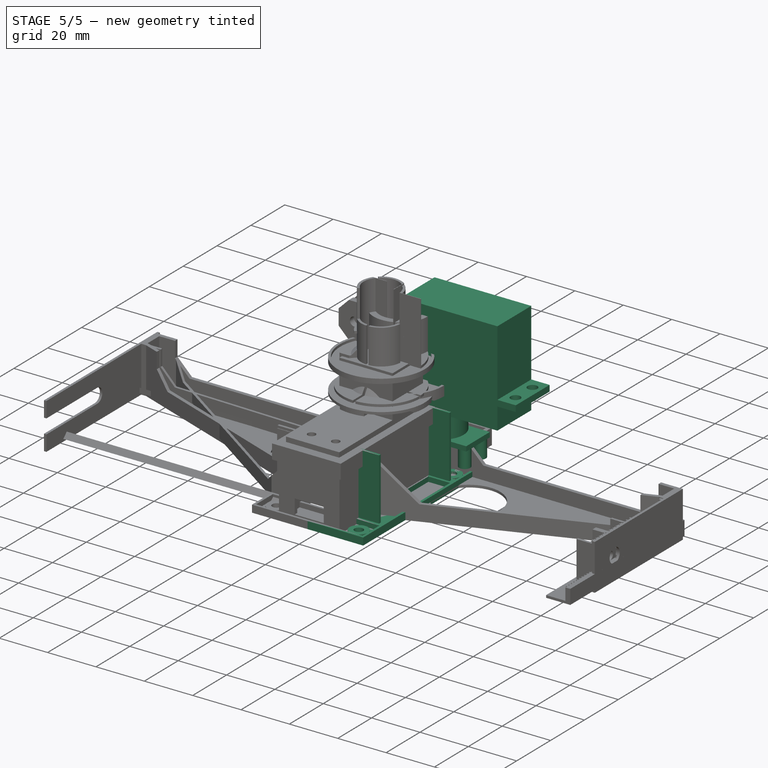
[diagram: stage 5 of 5 — iso view after this stage's code; geometry added in this stage tinted green]
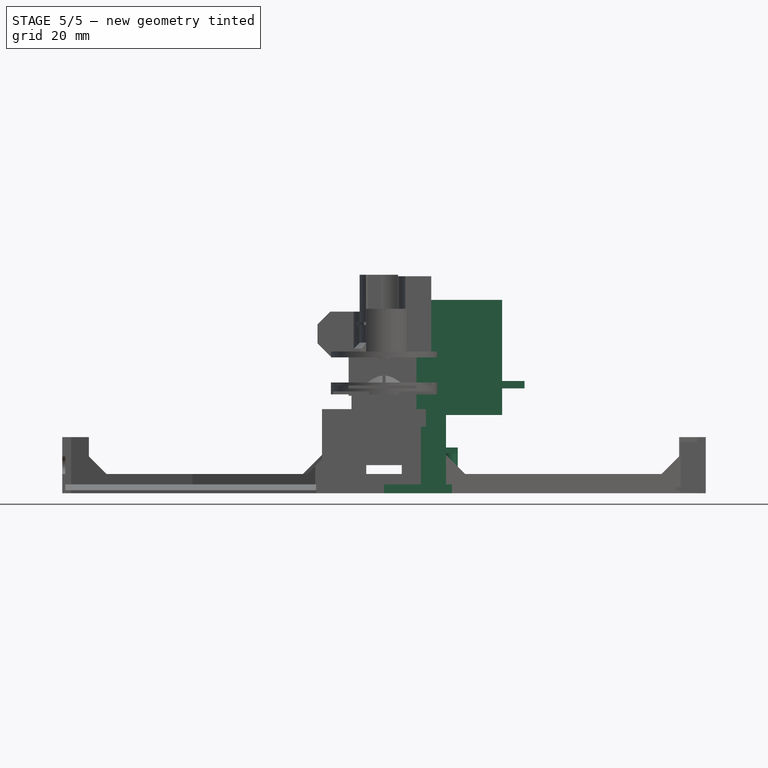
[diagram: stage 5 of 5 — front view after this stage's code; geometry added in this stage tinted green]
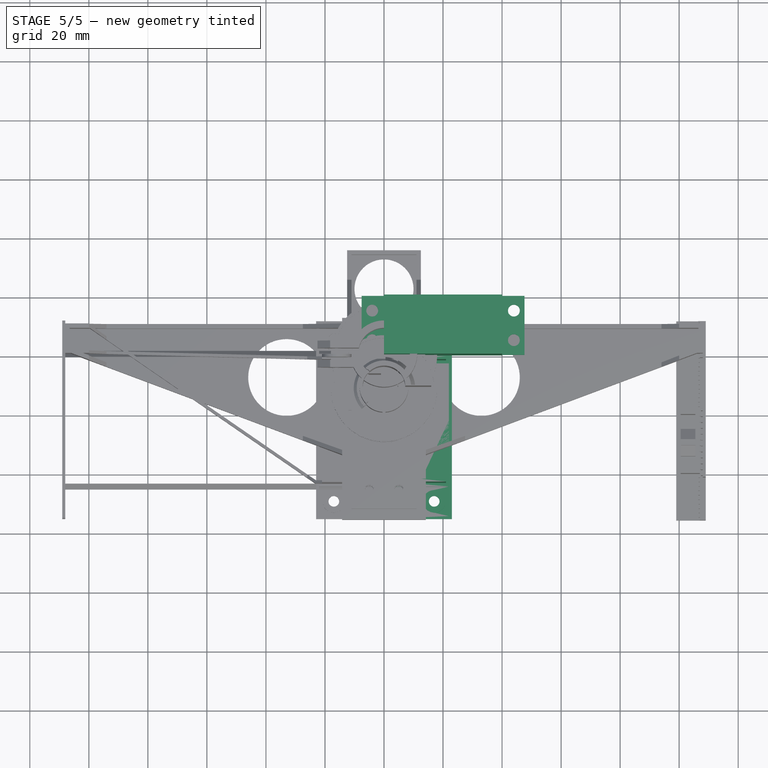
[diagram: stage 5 of 5 — top view after this stage's code; geometry added in this stage tinted green]
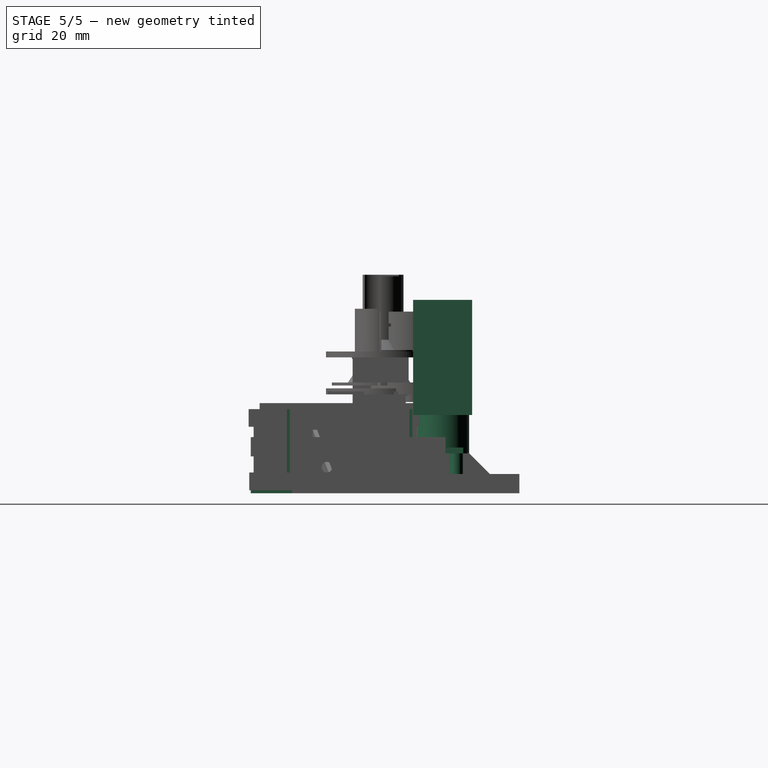
[diagram: stage 5 of 5 — right view after this stage's code; geometry added in this stage tinted green]
FEATURE [Part::Cylinder] Cylinder001
  Angle = 360
  AttacherType = Attacher::AttachEngine3D
  Height = 10
  Placement = pos=(44,15,5) rot=(0,0,1;0rad)
  Radius = 2
FEATURE [Part::Cylinder] Cylinder004
  Angle = 360
  AttacherType = Attacher::AttachEngine3D
  Height = 7
  Placement = pos=(4.6,-12.7,-7) rot=(0,0,1;0rad)
  Radius = 2.3
FEATURE [Part::Cylinder] Cylinder003
  Angle = 360
  AttacherType = Attacher::AttachEngine3D
  Height = 7
  Placement = pos=(-4.6,-12.7,-7) rot=(0,0,1;0rad)
  Radius = 2.3
FEATURE [Part::Cylinder] Cylinder002  label="shaft"
  Angle = 360
  AttacherType = Attacher::AttachEngine3D
  Height = 13
  Radius = 9
FEATURE [Part::Box] Box002  label="Cube002"
  AttacherType = Attacher::AttachEngine3D
  Height = 2
  Length = 14
  Placement = pos=(-7,-15,0) rot=(0,0,1;0rad)
  Width = 16
FEATURE [Part::Box] Box001  label="Cube001"
  AttacherType = Attacher::AttachEngine3D
  Height = 2.5
  Length = 7.6
  Placement = pos=(40,0,9) rot=(0,0,1;0rad)
  Width = 20
FEATURE [Part::Box] Box  label="Cube"
  AttacherType = Attacher::AttachEngine3D
  Height = 39
  Length = 40
  Placement = pos=(-10,-10,0) rot=(0,0,1;0rad)
  Width = 20
FEATURE [Part::Cylinder] Cylinder
  Angle = 360
  AttacherType = Attacher::AttachEngine3D
  Height = 10
  Placement = pos=(44,5,5) rot=(0,0,1;0rad)
  Radius = 2
FEATURE [Part::MultiFuse] Fusion
  Shapes = -> [Cylinder,Cylinder001]
FEATURE [Part::Cut] Cut
  Base = -> Box001
  Placement = pos=(-10,-10,0) rot=(0,0,1;0rad)
  Tool = -> Fusion
FEATURE [Part::Mirroring] Part__Mirroring  label="Cut (Mirror #1)"
  Base = (0,0,0)
  Normal = (1,0,0)
  Placement = pos=(20,0,0) rot=(0,0,1;0rad)
  Source = -> Cut
FEATURE [Part::MultiFuse] Fusion009  label="servo horn"
  Placement = pos=(0,0,-13) rot=(0,0,1;1.5708rad)
  Shapes = -> [Cylinder003,Box002,Cylinder002,Cylinder004]
FEATURE [Part::MultiFuse] Fusion010
  Shapes = -> [Box,Part__Mirroring,Cut]
FEATURE [Part::MultiFuse] Fusion011  label="servo master"
  Placement = pos=(10,10,0) rot=(0,0,1;0rad)
  Shapes = -> [Fusion009,Fusion010]
FEATURE [PartDesign::FeatureBase] Clone
  BaseFeature = -> Fusion011
  Placement = pos=(10,10,0) rot=(0,0,1;0rad)
FEATURE [Part::Cylinder] Cylinder005
  Angle = 360
  AttacherType = Attacher::AttachEngine3D
  Height = 10
  Placement = pos=(-5,2.5,-5) rot=(0,0,1;0rad)
  Radius = 1.4
  expr: Radius = Spreadsheet.lunchbox_screw_r1
FEATURE [Part::MultiFuse] Fusion012
  Shapes = -> [Extrude,Extrude001]
FEATURE [Part::Cut] Cut001
  Base = -> Fusion012
  Tool = -> Cylinder005
FEATURE [PartDesign::FeatureBase] Clone001
  BaseFeature = -> Cut001
FEATURE [PartDesign::Body] Body001
  BaseFeature = -> Cut001
  Group = -> [Clone001]
  Origin = -> Origin001
  Tip = -> Clone001
FEATURE [PartDesign::FeatureBase] Clone002
  BaseFeature = -> Cut001
FEATURE [PartDesign::Body] Body002
  BaseFeature = -> Cut001
  Group = -> [Clone002]
  Origin = -> Origin002
  Tip = -> Clone002
FEATURE [Part::Mirroring] Part__Mirroring003  label="Body002 (Mirror #4)"
  Base = (0,0,0)
  Normal = (1,0,0)
  Source = -> Body002
FEATURE [Part::Mirroring] Part__Mirroring002  label="Body001 (Mirror #3)"
  Base = (0,-21.5,0)
  Normal = (0,1,0)
  Source = -> Body001
FEATURE [PartDesign::FeatureBase] Clone003
  BaseFeature = -> Part__Mirroring002
FEATURE [PartDesign::Body] Body003
  BaseFeature = -> Part__Mirroring002
  Group = -> [Clone003]
  Origin = -> Origin003
  Tip = -> Clone003
FEATURE [Part::Mirroring] Part__Mirroring004  label="Body003 (Mirror #4)"
  Base = (0,-21.5,0)
  Normal = (1,0,0)
  Source = -> Body003
FEATURE [Part::Compound] Compound  label="servo top"
  Links = -> [Part__Mirroring002,Cut001,Part__Mirroring003,Part__Mirroring004]
  Placement = pos=(0,0,-1) rot=(0,0,1;0rad)
FEATURE [PartDesign::Body] Body004
  BaseFeature = -> Fusion013
  Group = -> [Clone004]
  Origin = -> Origin004
  Tip = -> Clone004
FEATURE [Part::Mirroring] Part__Mirroring005  label="Body004 (Mirror #5)"
  Base = (0,0,0)
  Normal = (1,0,0)
  Source = -> Body004
FEATURE [PartDesign::FeatureBase] Clone005
  BaseFeature = -> Part__Mirroring005
FEATURE [PartDesign::Body] Body005
  BaseFeature = -> Part__Mirroring005
  Group = -> [Clone005]
  Origin = -> Origin005
  Tip = -> Clone005
FEATURE [Part::Mirroring] Part__Mirroring006  label="Body005 (Mirror #6)"
  Base = (0,-21.5,0)
  Normal = (0,1,0)
  Source = -> Body005
FEATURE [Part::Compound] Compound001  label="bottom plate"
  Links = -> [Part__Mirroring007,Part__Mirroring005,Fusion013,Part__Mirroring006]
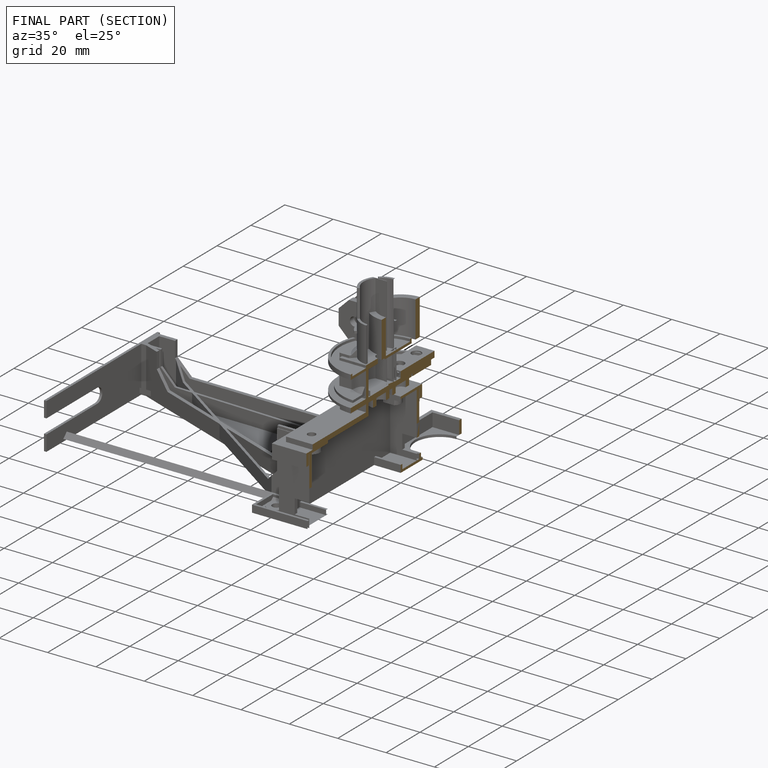
[diagram: finished part — half-section view (interior)]
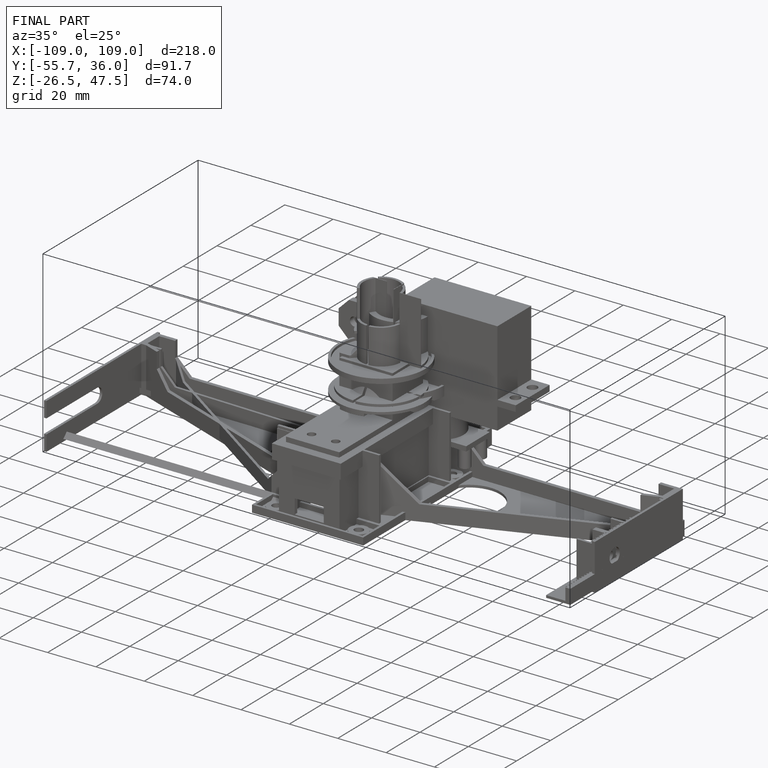
[diagram: finished part — iso view with bounding-box wireframe]
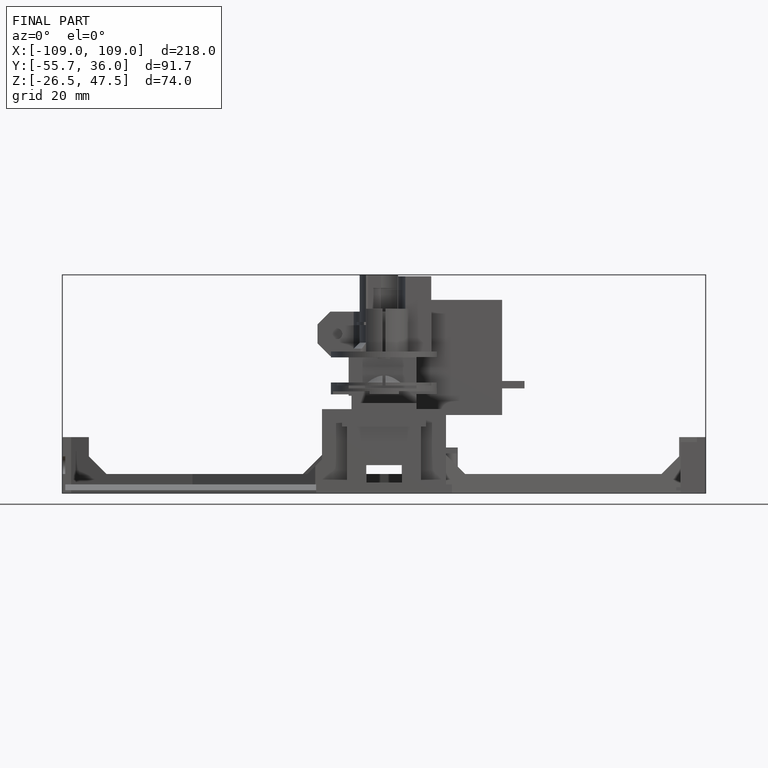
[diagram: finished part — front view with bounding-box wireframe]
